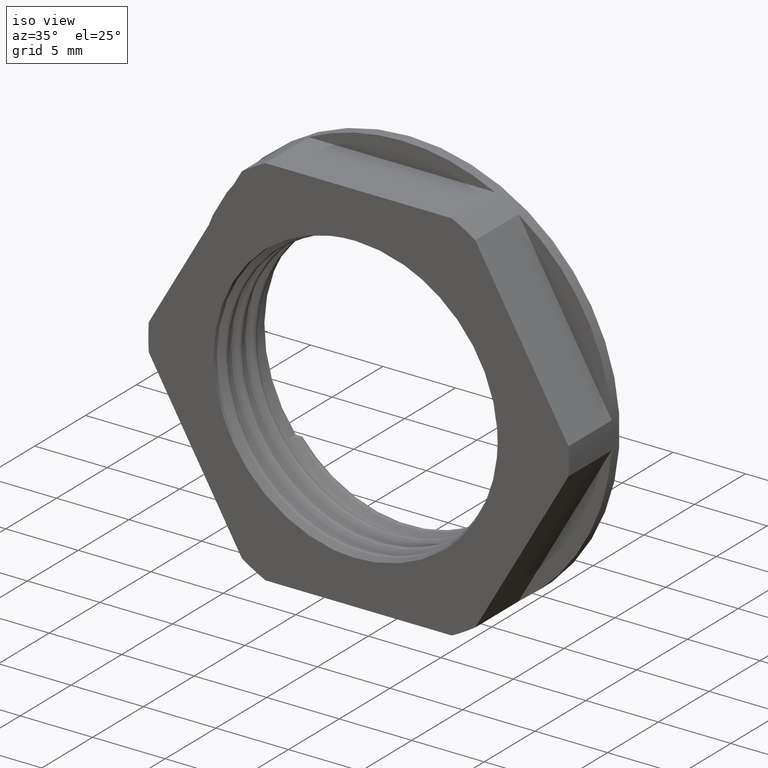
[diagram: clean part render]
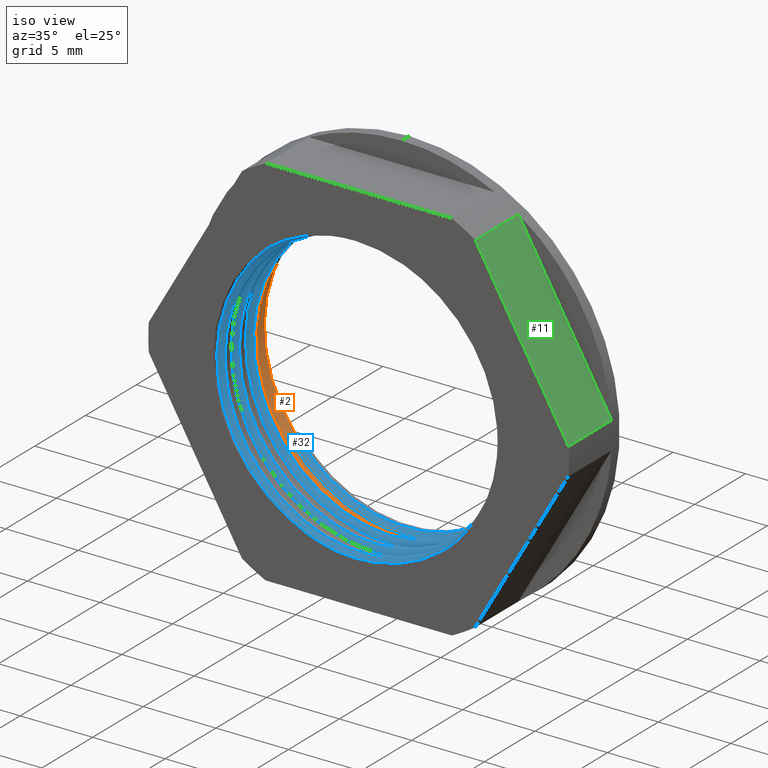
[diagram: same view with three faces highlighted in distinct colors, each labeled with its STEP entity id]
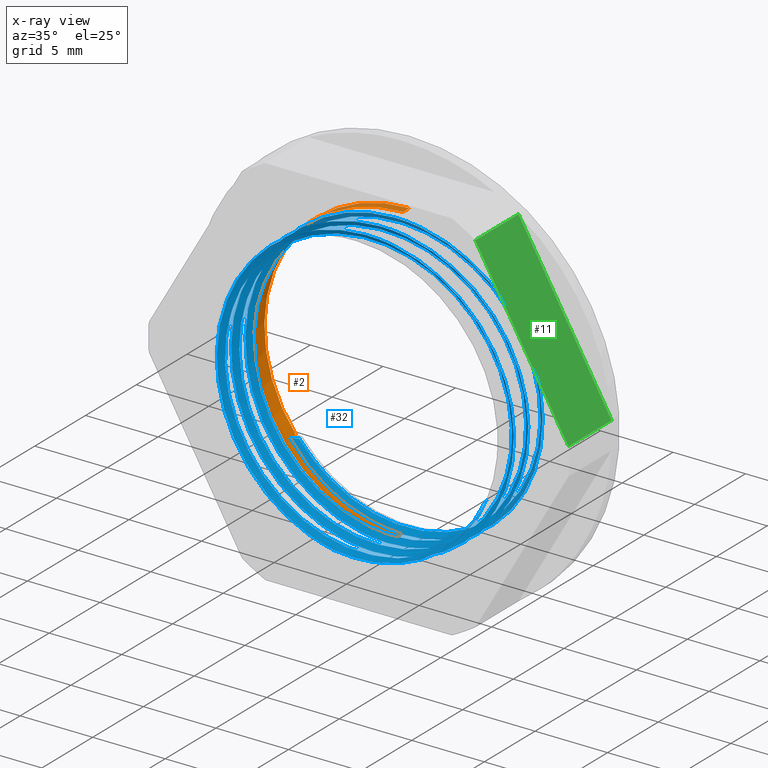
[diagram: x-ray of the same camera — body ghosted, the three highlighted faces saturated]
A machine part, iso view with three faces highlighted in distinct colors.
The next image is the same camera in x-ray (body ghosted, the three faces saturated) — at least one of them is partly hidden behind the body in this view.
Their STEP definitions:

[orange] entity #2 — the highlighted cylindrical surface (partial cylindrical patch) has radius 10 mm, axis along (0, 1, 0).
#2 = ADVANCED_FACE ( 'NONE', ( #1028 ), #790, .F. ) ;
#13 = EDGE_CURVE ( 'NONE', #770, #759, #2258, .T. ) ;
#35 = EDGE_CURVE ( 'NONE', #770, #752, #1652, .T. ) ;
#42 = EDGE_CURVE ( 'NONE', #773, #761, #1748, .T. ) ;
#68 = EDGE_CURVE ( 'NONE', #773, #752, #1316, .T. ) ;
#76 = EDGE_CURVE ( 'NONE', #761, #758, #2265, .T. ) ;
#78 = EDGE_CURVE ( 'NONE', #759, #758, #1877, .T. ) ;
#135 = CARTESIAN_POINT ( 'NONE',  ( -4.142135623742325000, -12.17949612511936800, -9.999999999988626000 ) ) ;
#151 = CARTESIAN_POINT ( 'NONE',  ( -4.142135623743410400, -11.65074612512007600, 9.999999999987542400 ) ) ;
#156 = CARTESIAN_POINT ( 'NONE',  ( -9.999999999999998200, -11.82699612511969500, 4.142135623730955500 ) ) ;
#157 = CARTESIAN_POINT ( 'NONE',  ( -3.006493559216707500E-011, -11.56262112512034800, 9.999999999999998200 ) ) ;
#159 = CARTESIAN_POINT ( 'NONE',  ( -7.071067811865473700, -11.73887112511971000, 7.071067811865473700 ) ) ;
#163 = CARTESIAN_POINT ( 'NONE',  ( -9.999999999999998200, -11.91512112511970900, 0.0000000000000000000 ) ) ;
#165 = CARTESIAN_POINT ( 'NONE',  ( -9.999999999999998200, -12.00324612511970200, -4.142135623730949200 ) ) ;
#166 = CARTESIAN_POINT ( 'NONE',  ( -7.071067811865473700, -12.09137112511970900, -7.071067811865473700 ) ) ;
#171 = CARTESIAN_POINT ( 'NONE',  ( -2.746381855263045700E-011, -12.26762112511912600, -9.999999999999998200 ) ) ;
#752 = VERTEX_POINT ( 'NONE', #2137 ) ;
#758 = VERTEX_POINT ( 'NONE', #2179 ) ;
#759 = VERTEX_POINT ( 'NONE', #2212 ) ;
#761 = VERTEX_POINT ( 'NONE', #2183 ) ;
#770 = VERTEX_POINT ( 'NONE', #2215 ) ;
#773 = VERTEX_POINT ( 'NONE', #2190 ) ;
#790 = CYLINDRICAL_SURFACE ( 'NONE', #1293, 10.00000000000000000 ) ;
#796 = CARTESIAN_POINT ( 'NONE',  ( 0.0000000000000000000, -20.94999999999999900, 0.0000000000000000000 ) ) ;
#797 = ORIENTED_EDGE ( 'NONE', *, *, #42, .F. ) ;
#798 = ORIENTED_EDGE ( 'NONE', *, *, #13, .T. ) ;
#850 = ORIENTED_EDGE ( 'NONE', *, *, #76, .F. ) ;
#854 = ORIENTED_EDGE ( 'NONE', *, *, #68, .T. ) ;
#856 = ORIENTED_EDGE ( 'NONE', *, *, #35, .F. ) ;
#857 = ORIENTED_EDGE ( 'NONE', *, *, #78, .T. ) ;
#946 = DIRECTION ( 'NONE',  ( 0.0000000000000000000, 1.000000000000000000, 0.0000000000000000000 ) ) ;
#973 = EDGE_LOOP ( 'NONE', ( #798, #857, #850, #797, #854, #856 ) ) ;
#1020 = DIRECTION ( 'NONE',  ( 0.0000000000000000000, 0.0000000000000000000, 1.000000000000000000 ) ) ;
#1028 = FACE_OUTER_BOUND ( 'NONE', #973, .T. ) ;
#1293 = AXIS2_PLACEMENT_3D ( 'NONE', #796, #946, #1020 ) ;
#1309 = VECTOR ( 'NONE', #1726, 1000.000000000000000 ) ;
#1316 = CIRCLE ( 'NONE', #1318, 10.00000000000000000 ) ;
#1318 = AXIS2_PLACEMENT_3D ( 'NONE', #1808, #1830, #1826 ) ;
#1343 = VECTOR ( 'NONE', #1653, 1000.000000000000000 ) ;
#1380 = VECTOR ( 'NONE', #1848, 1000.000000000000000 ) ;
#1652 = LINE ( 'NONE', #1671, #1343 ) ;
#1653 = DIRECTION ( 'NONE',  ( 0.0000000000000000000, 1.000000000000000000, 0.0000000000000000000 ) ) ;
#1671 = CARTESIAN_POINT ( 'NONE',  ( 0.0000000000000000000, -20.94999999999999900, 10.00000000000000000 ) ) ;
#1726 = DIRECTION ( 'NONE',  ( -0.0000000000000000000, -1.000000000000000000, -0.0000000000000000000 ) ) ;
#1741 = CARTESIAN_POINT ( 'NONE',  ( -7.846018098373211700, -20.94999999999999900, -6.200000000000001100 ) ) ;
#1748 = LINE ( 'NONE', #1741, #1309 ) ;
#1808 = CARTESIAN_POINT ( 'NONE',  ( 0.0000000000000000000, -10.95000000000000100, 0.0000000000000000000 ) ) ;
#1826 = DIRECTION ( 'NONE',  ( 0.0000000000000000000, 0.0000000000000000000, -1.000000000000000000 ) ) ;
#1830 = DIRECTION ( 'NONE',  ( -0.0000000000000000000, 1.000000000000000000, -0.0000000000000000000 ) ) ;
#1844 = CARTESIAN_POINT ( 'NONE',  ( -7.846018098380169700, -11.55576743391516100, -6.199999999991199200 ) ) ;
#1847 = CARTESIAN_POINT ( 'NONE',  ( -4.142135623718470300, -11.66925387488164200, -10.00000000001248100 ) ) ;
#1848 = DIRECTION ( 'NONE',  ( 0.0000000000000000000, 1.000000000000000000, 0.0000000000000000000 ) ) ;
#1850 = CARTESIAN_POINT ( 'NONE',  ( 3.012734064888285900E-011, -11.75737887488189800, -10.00000000000000200 ) ) ;
#1873 = CARTESIAN_POINT ( 'NONE',  ( -7.483975507346695400, -11.56870540846858100, -6.658160116384254800 ) ) ;
#1877 = LINE ( 'NONE', #1887, #1380 ) ;
#1887 = CARTESIAN_POINT ( 'NONE',  ( 1.224646799147353300E-015, -20.94999999999999900, -10.00000000000000000 ) ) ;
#1889 = CARTESIAN_POINT ( 'NONE',  ( -7.071067811865475500, -11.58112887488125300, -7.071067811865475500 ) ) ;
#2137 = CARTESIAN_POINT ( 'NONE',  ( 0.0000000000000000000, -10.95000000000000100, 10.00000000000000000 ) ) ;
#2179 = CARTESIAN_POINT ( 'NONE',  ( 3.012734064888285900E-011, -11.75737887488189800, -10.00000000000000200 ) ) ;
#2183 = CARTESIAN_POINT ( 'NONE',  ( -7.846018098380169700, -11.55576743391516100, -6.199999999991199200 ) ) ;
#2190 = CARTESIAN_POINT ( 'NONE',  ( -7.846018098373211700, -10.95000000000000100, -6.200000000000001100 ) ) ;
#2212 = CARTESIAN_POINT ( 'NONE',  ( -2.746381855263045700E-011, -12.26762112511912600, -10.00000000000000000 ) ) ;
#2215 = CARTESIAN_POINT ( 'NONE',  ( -3.006493559216707500E-011, -11.56262112512034800, 9.999999999999998200 ) ) ;
#2258 =( BOUNDED_CURVE ( )  B_SPLINE_CURVE ( 2, ( #157, #151, #159, #156, #163, #165, #166, #135, #171 ),
 .UNSPECIFIED., .F., .F. ) 
 B_SPLINE_CURVE_WITH_KNOTS ( ( 3, 2, 2, 2, 3 ),
 ( 0.05546358415195965000, 0.06336735400736434600, 0.07127112386276904200, 0.07917489371817375300, 0.08707866357357844900 ),
 .UNSPECIFIED. ) 
 CURVE ( )  GEOMETRIC_REPRESENTATION_ITEM ( )  RATIONAL_B_SPLINE_CURVE ( ( 0.9999999999997009100, 0.9238795325115860500, 1.000000000000000000, 0.9238795325112869600, 1.000000000000000000, 0.9238795325112869600, 1.000000000000000000, 0.9238795325115600800, 0.9999999999997268900 ) ) 
 REPRESENTATION_ITEM ( '' )  );
#2265 =( BOUNDED_CURVE ( )  B_SPLINE_CURVE ( 2, ( #1844, #1873, #1889, #1847, #1850 ),
 .UNSPECIFIED., .F., .F. ) 
 B_SPLINE_CURVE_WITH_KNOTS ( ( 3, 2, 3 ),
 ( 0.01488864047675231600, 0.01607827895935617600, 0.02396510154617909800 ),
 .UNSPECIFIED. ) 
 CURVE ( )  GEOMETRIC_REPRESENTATION_ITEM ( )  RATIONAL_B_SPLINE_CURVE ( ( 0.9805000031347788100, 0.9885180836209417300, 1.000000000000000000, 0.9238795325109873100, 1.000000000000299800 ) ) 
 REPRESENTATION_ITEM ( '' )  );

[blue] entity #32 — the highlighted face is a freeform B-spline surface patch.
#32 = ADVANCED_FACE ( 'NONE', ( #1444 ), #2266, .F. ) ;
#40 = EDGE_CURVE ( 'NONE', #760, #781, #2264, .T. ) ;
#47 = EDGE_CURVE ( 'NONE', #758, #793, #2272, .T. ) ;
#62 = EDGE_CURVE ( 'NONE', #743, #760, #2259, .T. ) ;
#64 = EDGE_CURVE ( 'NONE', #793, #743, #2260, .T. ) ;
#69 = EDGE_CURVE ( 'NONE', #781, #786, #2267, .T. ) ;
#76 = EDGE_CURVE ( 'NONE', #761, #758, #2265, .T. ) ;
#88 = EDGE_CURVE ( 'NONE', #762, #778, #2275, .T. ) ;
#89 = EDGE_CURVE ( 'NONE', #778, #761, #123, .T. ) ;
#94 = EDGE_CURVE ( 'NONE', #786, #785, #2280, .T. ) ;
#103 = EDGE_CURVE ( 'NONE', #762, #785, #128, .T. ) ;
#123 = B_SPLINE_CURVE_WITH_KNOTS ( 'NONE', 3,
 ( #1896, #1899, #1950, #1961, #1952, #1966, #1985 ),
 .UNSPECIFIED., .F., .F.,
 ( 4, 3, 4 ),
 ( 2.453269466693398700E-018, 0.0004587740067472688800, 0.0005404289811188535000 ),
 .UNSPECIFIED. ) ;
#128 = B_SPLINE_CURVE_WITH_KNOTS ( 'NONE', 3,
 ( #2049, #2102, #2048, #2053, #2083, #2081, #2085, #2103, #2086, #2047, #2054, #2055, #2058, #2092, #2056, #2057, #2059, #2060 ),
 .UNSPECIFIED., .F., .F.,
 ( 4, 2, 2, 2, 2, 2, 2, 2, 4 ),
 ( 5.710086792581569100E-016, 0.001637634746555153000, 0.003275269493109733500, 0.004912904239664313600, 0.006550538986218891100, 0.008188173732773470400, 0.009825808479328049600, 0.01146344322588262900, 0.01310107797243720600 ),
 .UNSPECIFIED. ) ;
#743 = VERTEX_POINT ( 'NONE', #2133 ) ;
#758 = VERTEX_POINT ( 'NONE', #2179 ) ;
#760 = VERTEX_POINT ( 'NONE', #2216 ) ;
#761 = VERTEX_POINT ( 'NONE', #2183 ) ;
#762 = VERTEX_POINT ( 'NONE', #2172 ) ;
#778 = VERTEX_POINT ( 'NONE', #2219 ) ;
#781 = VERTEX_POINT ( 'NONE', #2174 ) ;
#785 = VERTEX_POINT ( 'NONE', #2178 ) ;
#786 = VERTEX_POINT ( 'NONE', #2189 ) ;
#793 = VERTEX_POINT ( 'NONE', #2191 ) ;
#799 = ORIENTED_EDGE ( 'NONE', *, *, #47, .T. ) ;
#807 = ORIENTED_EDGE ( 'NONE', *, *, #40, .T. ) ;
#825 = ORIENTED_EDGE ( 'NONE', *, *, #89, .T. ) ;
#831 = ORIENTED_EDGE ( 'NONE', *, *, #76, .T. ) ;
#832 = ORIENTED_EDGE ( 'NONE', *, *, #64, .T. ) ;
#834 = ORIENTED_EDGE ( 'NONE', *, *, #69, .T. ) ;
#838 = ORIENTED_EDGE ( 'NONE', *, *, #62, .T. ) ;
#864 = ORIENTED_EDGE ( 'NONE', *, *, #88, .T. ) ;
#880 = ORIENTED_EDGE ( 'NONE', *, *, #103, .F. ) ;
#961 = ORIENTED_EDGE ( 'NONE', *, *, #94, .T. ) ;
#966 = EDGE_LOOP ( 'NONE', ( #864, #825, #831, #799, #832, #838, #807, #834, #961, #880 ) ) ;
#1401 = CARTESIAN_POINT ( 'NONE',  ( -7.247844507162112000, -11.79090378267520100, -7.247844507162112000 ) ) ;
#1402 = CARTESIAN_POINT ( 'NONE',  ( 4.245689014324223200, -12.05527878267520400, -10.24999999999999800 ) ) ;
#1404 = CARTESIAN_POINT ( 'NONE',  ( 7.247844507162112000, -12.14340378267520000, -7.247844507162112000 ) ) ;
#1405 = CARTESIAN_POINT ( 'NONE',  ( -4.245689014324223200, -13.28902878267519900, -10.24999999999999800 ) ) ;
#1406 = CARTESIAN_POINT ( 'NONE',  ( 10.24999999999999800, -13.64152878267519300, -4.245689014324228500 ) ) ;
#1410 = CARTESIAN_POINT ( 'NONE',  ( 4.245689014324223200, -13.46527878267518800, -10.24999999999999800 ) ) ;
#1411 = CARTESIAN_POINT ( 'NONE',  ( -10.24999999999999800, -14.34652878267521600, 4.245689014324228500 ) ) ;
#1412 = CARTESIAN_POINT ( 'NONE',  ( -4.245689014324223200, -14.69902878267520700, -10.24999999999999800 ) ) ;
#1413 = CARTESIAN_POINT ( 'NONE',  ( -6.276314845630190100E-016, -14.78715378267519900, -10.25000000000000000 ) ) ;
#1414 = CARTESIAN_POINT ( 'NONE',  ( 7.247844507162112000, -12.49590378267520000, 7.247844507162112000 ) ) ;
#1415 = CARTESIAN_POINT ( 'NONE',  ( 7.247844507162112000, -14.96340378267520100, -7.247844507162112000 ) ) ;
#1416 = CARTESIAN_POINT ( 'NONE',  ( 10.24999999999999800, -15.05152878267519500, -4.245689014324228500 ) ) ;
#1419 = CARTESIAN_POINT ( 'NONE',  ( -10.24999999999999800, -11.70277878267518900, -4.245689014324223200 ) ) ;
#1420 = CARTESIAN_POINT ( 'NONE',  ( 10.24999999999999800, -13.81777878267519600, 4.245689014324223200 ) ) ;
#1421 = CARTESIAN_POINT ( 'NONE',  ( 4.245689014324223200, -14.87527878267519200, -10.24999999999999800 ) ) ;
#1422 = CARTESIAN_POINT ( 'NONE',  ( 10.24999999999999800, -12.40777878267519400, 4.245689014324223200 ) ) ;
#1423 = CARTESIAN_POINT ( 'NONE',  ( -4.245689014324228500, -12.76027878267520200, 10.24999999999999800 ) ) ;
#1425 = CARTESIAN_POINT ( 'NONE',  ( -7.247844507162112000, -14.25840378267520100, 7.247844507162112000 ) ) ;
#1426 = CARTESIAN_POINT ( 'NONE',  ( -10.25000000000000000, -11.61465378267520000, 0.0000000000000000000 ) ) ;
#1429 = CARTESIAN_POINT ( 'NONE',  ( 10.25000000000000000, -15.13965378267520000, -1.255262969126036100E-015 ) ) ;
#1430 = CARTESIAN_POINT ( 'NONE',  ( -10.24999999999999800, -12.93652878267519000, 4.245689014324228500 ) ) ;
#1431 = CARTESIAN_POINT ( 'NONE',  ( 4.245689014324228500, -12.58402878267520100, 10.24999999999999800 ) ) ;
#1432 = CARTESIAN_POINT ( 'NONE',  ( 1.882894453689054900E-015, -12.67215378267520100, 10.25000000000000000 ) ) ;
#1435 = CARTESIAN_POINT ( 'NONE',  ( -7.247844507162112000, -12.84840378267520000, 7.247844507162112000 ) ) ;
#1436 = CARTESIAN_POINT ( 'NONE',  ( 10.25000000000000000, -13.72965378267520000, -1.255262969126036100E-015 ) ) ;
#1437 = CARTESIAN_POINT ( 'NONE',  ( -6.276314845630190100E-016, -11.96715378267520300, -10.25000000000000000 ) ) ;
#1438 = CARTESIAN_POINT ( 'NONE',  ( 10.24999999999999800, -12.23152878267518200, -4.245689014324228500 ) ) ;
#1439 = CARTESIAN_POINT ( 'NONE',  ( -10.25000000000000000, -13.02465378267520000, 0.0000000000000000000 ) ) ;
#1440 = CARTESIAN_POINT ( 'NONE',  ( -10.24999999999999800, -13.11277878267521600, -4.245689014324223200 ) ) ;
#1441 = CARTESIAN_POINT ( 'NONE',  ( -7.247844507162112000, -13.20090378267520300, -7.247844507162112000 ) ) ;
#1442 = CARTESIAN_POINT ( 'NONE',  ( 1.882894453689054900E-015, -14.08215378267520100, 10.25000000000000000 ) ) ;
#1444 = FACE_OUTER_BOUND ( 'NONE', #966, .T. ) ;
#1445 = CARTESIAN_POINT ( 'NONE',  ( -10.25000000000000000, -14.43465378267520400, 0.0000000000000000000 ) ) ;
#1446 = CARTESIAN_POINT ( 'NONE',  ( 10.25000000000000000, -12.31965378267520000, -1.255262969126036100E-015 ) ) ;
#1447 = CARTESIAN_POINT ( 'NONE',  ( -4.245689014324223200, -11.87902878267521900, -10.24999999999999800 ) ) ;
#1448 = CARTESIAN_POINT ( 'NONE',  ( -6.276314845630190100E-016, -13.37715378267519900, -10.25000000000000000 ) ) ;
#1451 = CARTESIAN_POINT ( 'NONE',  ( 7.247844507162112000, -13.55340378267520100, -7.247844507162112000 ) ) ;
#1452 = CARTESIAN_POINT ( 'NONE',  ( 7.247844507162112000, -13.90590378267520000, 7.247844507162112000 ) ) ;
#1453 = CARTESIAN_POINT ( 'NONE',  ( -4.245689014324228500, -14.17027878267518800, 10.24999999999999800 ) ) ;
#1454 = CARTESIAN_POINT ( 'NONE',  ( 4.245689014324228500, -13.99402878267520500, 10.24999999999999800 ) ) ;
#1455 = CARTESIAN_POINT ( 'NONE',  ( -10.24999999999999800, -14.52277878267520400, -4.245689014324223200 ) ) ;
#1456 = CARTESIAN_POINT ( 'NONE',  ( -7.247844507162112000, -14.61090378267520000, -7.247844507162112000 ) ) ;
#1458 = CARTESIAN_POINT ( 'NONE',  ( 1.882894453689054900E-015, -18.31215378267520000, 10.25000000000000000 ) ) ;
#1459 = CARTESIAN_POINT ( 'NONE',  ( -10.25000000000000000, -17.25465378267520600, 0.0000000000000000000 ) ) ;
#1460 = CARTESIAN_POINT ( 'NONE',  ( -4.245689014324223200, -17.51902878267520300, -10.24999999999999800 ) ) ;
#1461 = CARTESIAN_POINT ( 'NONE',  ( 7.247844507162112000, -16.72590378267520000, 7.247844507162112000 ) ) ;
#1462 = CARTESIAN_POINT ( 'NONE',  ( 1.882894453689054900E-015, -19.72215378267520300, 10.25000000000000000 ) ) ;
#1463 = CARTESIAN_POINT ( 'NONE',  ( -4.245689014324228500, -19.81027878267521900, 10.24999999999999800 ) ) ;
#1464 = CARTESIAN_POINT ( 'NONE',  ( -10.24999999999999800, -19.98652878267521500, 4.245689014324228500 ) ) ;
#1465 = CARTESIAN_POINT ( 'NONE',  ( -6.276314845630190100E-016, -17.60715378267519800, -10.25000000000000000 ) ) ;
#1466 = CARTESIAN_POINT ( 'NONE',  ( -7.247844507162112000, -19.89840378267519900, 7.247844507162112000 ) ) ;
#1467 = CARTESIAN_POINT ( 'NONE',  ( -10.25000000000000000, -20.07465378267519900, 0.0000000000000000000 ) ) ;
#1468 = CARTESIAN_POINT ( 'NONE',  ( 10.24999999999999800, -17.87152878267518100, -4.245689014324228500 ) ) ;
#1469 = CARTESIAN_POINT ( 'NONE',  ( 10.25000000000000000, -17.95965378267520100, -1.255262969126036100E-015 ) ) ;
#1470 = CARTESIAN_POINT ( 'NONE',  ( -4.245689014324228500, -18.40027878267518000, 10.24999999999999800 ) ) ;
#1471 = CARTESIAN_POINT ( 'NONE',  ( 10.24999999999999800, -18.04777878267521600, 4.245689014324223200 ) ) ;
#1472 = CARTESIAN_POINT ( 'NONE',  ( 4.245689014324228500, -18.22402878267520900, 10.24999999999999800 ) ) ;
#1473 = CARTESIAN_POINT ( 'NONE',  ( -10.24999999999999800, -18.57652878267523300, 4.245689014324228500 ) ) ;
#1474 = CARTESIAN_POINT ( 'NONE',  ( -4.245689014324223200, -18.92902878267519300, -10.24999999999999800 ) ) ;
#1475 = CARTESIAN_POINT ( 'NONE',  ( -10.24999999999999800, -20.16277878267518600, -4.245689014324223200 ) ) ;
#1476 = CARTESIAN_POINT ( 'NONE',  ( -7.247844507162112000, -20.25090378267519900, -7.247844507162112000 ) ) ;
#1477 = CARTESIAN_POINT ( 'NONE',  ( 4.245689014324228500, -19.63402878267519100, 10.24999999999999800 ) ) ;
#1478 = CARTESIAN_POINT ( 'NONE',  ( 7.247844507162112000, -16.37340378267520100, -7.247844507162112000 ) ) ;
#1479 = CARTESIAN_POINT ( 'NONE',  ( 4.245689014324228500, -15.40402878267519200, 10.24999999999999800 ) ) ;
#1480 = CARTESIAN_POINT ( 'NONE',  ( -4.245689014324223200, -20.33902878267517200, -10.24999999999999800 ) ) ;
#1481 = CARTESIAN_POINT ( 'NONE',  ( -6.276314845630190100E-016, -16.19715378267520100, -10.25000000000000000 ) ) ;
#1482 = CARTESIAN_POINT ( 'NONE',  ( 4.245689014324223200, -19.10527878267517500, -10.24999999999999800 ) ) ;
#1483 = CARTESIAN_POINT ( 'NONE',  ( 7.247844507162112000, -18.13590378267520000, 7.247844507162112000 ) ) ;
#1484 = CARTESIAN_POINT ( 'NONE',  ( -4.245689014324223200, -16.10902878267518900, -10.24999999999999800 ) ) ;
#1485 = CARTESIAN_POINT ( 'NONE',  ( 10.24999999999999800, -19.28152878267521300, -4.245689014324228500 ) ) ;
#1486 = CARTESIAN_POINT ( 'NONE',  ( -4.245689014324228500, -16.99027878267519800, 10.24999999999999800 ) ) ;
#1487 = CARTESIAN_POINT ( 'NONE',  ( 10.24999999999999800, -15.22777878267520400, 4.245689014324223200 ) ) ;
#1488 = CARTESIAN_POINT ( 'NONE',  ( -4.245689014324228500, -15.58027878267521500, 10.24999999999999800 ) ) ;
#1489 = CARTESIAN_POINT ( 'NONE',  ( -10.24999999999999800, -15.93277878267518200, -4.245689014324223200 ) ) ;
#1490 = CARTESIAN_POINT ( 'NONE',  ( -7.247844507162112000, -16.02090378267520200, -7.247844507162112000 ) ) ;
#1491 = CARTESIAN_POINT ( 'NONE',  ( 10.24999999999999800, -16.63777878267517700, 4.245689014324223200 ) ) ;
#1492 = CARTESIAN_POINT ( 'NONE',  ( -10.24999999999999800, -17.34277878267522900, -4.245689014324223200 ) ) ;
#1493 = CARTESIAN_POINT ( 'NONE',  ( 1.882894453689054900E-015, -15.49215378267520300, 10.25000000000000000 ) ) ;
#1494 = CARTESIAN_POINT ( 'NONE',  ( 7.247844507162112000, -17.78340378267519700, -7.247844507162112000 ) ) ;
#1495 = CARTESIAN_POINT ( 'NONE',  ( -10.24999999999999800, -18.75277878267520700, -4.245689014324223200 ) ) ;
#1496 = CARTESIAN_POINT ( 'NONE',  ( -7.247844507162112000, -15.66840378267519900, 7.247844507162112000 ) ) ;
#1497 = CARTESIAN_POINT ( 'NONE',  ( -6.276314845630190100E-016, -19.01715378267520200, -10.25000000000000000 ) ) ;
#1498 = CARTESIAN_POINT ( 'NONE',  ( 10.25000000000000000, -19.36965378267520100, -1.255262969126036100E-015 ) ) ;
#1499 = CARTESIAN_POINT ( 'NONE',  ( -10.24999999999999800, -15.75652878267520100, 4.245689014324228500 ) ) ;
#1500 = CARTESIAN_POINT ( 'NONE',  ( 10.24999999999999800, -16.46152878267519200, -4.245689014324228500 ) ) ;
#1501 = CARTESIAN_POINT ( 'NONE',  ( 4.245689014324228500, -16.81402878267521600, 10.24999999999999800 ) ) ;
#1502 = CARTESIAN_POINT ( 'NONE',  ( -10.25000000000000000, -18.66465378267519900, 0.0000000000000000000 ) ) ;
#1503 = CARTESIAN_POINT ( 'NONE',  ( 4.245689014324223200, -16.28527878267520600, -10.24999999999999800 ) ) ;
#1504 = CARTESIAN_POINT ( 'NONE',  ( 7.247844507162112000, -19.19340378267520100, -7.247844507162112000 ) ) ;
#1505 = CARTESIAN_POINT ( 'NONE',  ( 1.882894453689054900E-015, -16.90215378267520300, 10.25000000000000000 ) ) ;
#1506 = CARTESIAN_POINT ( 'NONE',  ( -10.25000000000000000, -15.84465378267519900, 0.0000000000000000000 ) ) ;
#1507 = CARTESIAN_POINT ( 'NONE',  ( -7.247844507162112000, -17.07840378267520300, 7.247844507162112000 ) ) ;
#1508 = CARTESIAN_POINT ( 'NONE',  ( 10.25000000000000000, -16.54965378267520000, -1.255262969126036100E-015 ) ) ;
#1509 = CARTESIAN_POINT ( 'NONE',  ( -7.247844507162112000, -17.43090378267520200, -7.247844507162112000 ) ) ;
#1510 = CARTESIAN_POINT ( 'NONE',  ( 7.247844507162112000, -15.31590378267520200, 7.247844507162112000 ) ) ;
#1511 = CARTESIAN_POINT ( 'NONE',  ( 4.245689014324223200, -17.69527878267519200, -10.24999999999999800 ) ) ;
#1512 = CARTESIAN_POINT ( 'NONE',  ( -7.247844507162112000, -18.84090378267520200, -7.247844507162112000 ) ) ;
#1513 = CARTESIAN_POINT ( 'NONE',  ( -10.24999999999999800, -17.16652878267519000, 4.245689014324228500 ) ) ;
#1514 = CARTESIAN_POINT ( 'NONE',  ( 10.24999999999999800, -19.45777878267520200, 4.245689014324223200 ) ) ;
#1515 = CARTESIAN_POINT ( 'NONE',  ( 7.247844507162112000, -19.54590378267520400, 7.247844507162112000 ) ) ;
#1516 = CARTESIAN_POINT ( 'NONE',  ( -7.247844507162112000, -18.48840378267519900, 7.247844507162112000 ) ) ;
#1517 = CARTESIAN_POINT ( 'NONE',  ( -10.24999999999999800, -21.57277878267517600, -4.245689014324223200 ) ) ;
#1518 = CARTESIAN_POINT ( 'NONE',  ( 1.772022735587855300E-015, -12.16570888862456100, 9.646442478063082900 ) ) ;
#1519 = CARTESIAN_POINT ( 'NONE',  ( -3.995687303065658100, -12.25383388862455900, 9.646442478063081100 ) ) ;
#1520 = CARTESIAN_POINT ( 'NONE',  ( 3.995687303065664300, -13.48758388862455400, 9.646442478063081100 ) ) ;
#1521 = CARTESIAN_POINT ( 'NONE',  ( -10.24999999999999800, -22.80652878267518300, 4.245689014324228500 ) ) ;
#1522 = CARTESIAN_POINT ( 'NONE',  ( -3.995687303065658100, -13.66383388862456600, 9.646442478063081100 ) ) ;
#1523 = CARTESIAN_POINT ( 'NONE',  ( 3.995687303065658100, -12.95883388862457900, -9.646442478063081100 ) ) ;
#1524 = CARTESIAN_POINT ( 'NONE',  ( 7.247844507162112000, -22.01340378267520500, -7.247844507162112000 ) ) ;
#1525 = CARTESIAN_POINT ( 'NONE',  ( 10.24999999999999800, -22.10152878267517800, -4.245689014324228500 ) ) ;
#1526 = CARTESIAN_POINT ( 'NONE',  ( 7.247844507162112000, -20.60340378267520100, -7.247844507162112000 ) ) ;
#1527 = CARTESIAN_POINT ( 'NONE',  ( 10.24999999999999800, -20.69152878267519600, -4.245689014324228500 ) ) ;
#1528 = CARTESIAN_POINT ( 'NONE',  ( 10.24999999999999800, -20.86777878267519200, 4.245689014324223200 ) ) ;
#1529 = CARTESIAN_POINT ( 'NONE',  ( -7.247844507162112000, -21.66090378267520200, -7.247844507162112000 ) ) ;
#1530 = CARTESIAN_POINT ( 'NONE',  ( 4.245689014324223200, -20.51527878267521700, -10.24999999999999800 ) ) ;
#1531 = CARTESIAN_POINT ( 'NONE',  ( 10.25000000000000000, -20.77965378267520100, -1.255262969126036100E-015 ) ) ;
#1532 = CARTESIAN_POINT ( 'NONE',  ( 4.245689014324223200, -21.92527878267520000, -10.24999999999999800 ) ) ;
#1533 = CARTESIAN_POINT ( 'NONE',  ( 10.24999999999999800, -22.27777878267523100, 4.245689014324223200 ) ) ;
#1534 = CARTESIAN_POINT ( 'NONE',  ( -9.646442478063082900, -11.10820888862455800, 0.0000000000000000000 ) ) ;
#1535 = CARTESIAN_POINT ( 'NONE',  ( 3.995687303065658100, -11.54883388862457500, -9.646442478063081100 ) ) ;
#1536 = CARTESIAN_POINT ( 'NONE',  ( 6.821064890564369600, -11.63695888862455900, -6.821064890564369600 ) ) ;
#1537 = CARTESIAN_POINT ( 'NONE',  ( -6.821064890564369600, -12.34195888862455900, 6.821064890564369600 ) ) ;
#1538 = CARTESIAN_POINT ( 'NONE',  ( 4.245689014324228500, -22.45402878267520600, 10.24999999999999800 ) ) ;
#1539 = CARTESIAN_POINT ( 'NONE',  ( 7.247844507162112000, -22.36590378267519700, 7.247844507162112000 ) ) ;
#1540 = CARTESIAN_POINT ( 'NONE',  ( -6.821064890564369600, -13.75195888862455900, 6.821064890564369600 ) ) ;
#1541 = CARTESIAN_POINT ( 'NONE',  ( -9.646442478063081100, -14.01633388862457300, -3.995687303065658100 ) ) ;
#1542 = CARTESIAN_POINT ( 'NONE',  ( -3.995687303065658100, -12.78258388862457600, -9.646442478063081100 ) ) ;
#1543 = CARTESIAN_POINT ( 'NONE',  ( -6.821064890564369600, -12.69445888862456000, -6.821064890564369600 ) ) ;
#1544 = CARTESIAN_POINT ( 'NONE',  ( 6.821064890564369600, -13.39945888862455800, 6.821064890564369600 ) ) ;
#1545 = CARTESIAN_POINT ( 'NONE',  ( -6.821064890564369600, -14.10445888862456000, -6.821064890564369600 ) ) ;
#1546 = CARTESIAN_POINT ( 'NONE',  ( -5.906742451959509900E-016, -12.87070888862455900, -9.646442478063082900 ) ) ;
#1547 = CARTESIAN_POINT ( 'NONE',  ( 9.646442478063081100, -13.31133388862456900, 3.995687303065652800 ) ) ;
#1548 = CARTESIAN_POINT ( 'NONE',  ( 9.646442478063081100, -11.90133388862456700, 3.995687303065652800 ) ) ;
#1549 = CARTESIAN_POINT ( 'NONE',  ( -7.247844507162112000, -21.30840378267520000, 7.247844507162112000 ) ) ;
#1550 = CARTESIAN_POINT ( 'NONE',  ( -4.245689014324228500, -21.22027878267520500, 10.24999999999999800 ) ) ;
#1551 = CARTESIAN_POINT ( 'NONE',  ( 3.995687303065664300, -12.07758388862457000, 9.646442478063081100 ) ) ;
#1552 = CARTESIAN_POINT ( 'NONE',  ( 7.247844507162112000, -20.95590378267520000, 7.247844507162112000 ) ) ;
#1553 = CARTESIAN_POINT ( 'NONE',  ( -6.276314845630190100E-016, -20.42715378267519800, -10.25000000000000000 ) ) ;
#1554 = CARTESIAN_POINT ( 'NONE',  ( -4.245689014324223200, -21.74902878267521100, -10.24999999999999800 ) ) ;
#1555 = CARTESIAN_POINT ( 'NONE',  ( -6.276314845630190100E-016, -21.83715378267520500, -10.25000000000000000 ) ) ;
#1556 = CARTESIAN_POINT ( 'NONE',  ( -10.25000000000000000, -22.89465378267519900, 0.0000000000000000000 ) ) ;
#1557 = CARTESIAN_POINT ( 'NONE',  ( -9.646442478063081100, -12.43008388862456200, 3.995687303065664300 ) ) ;
#1558 = CARTESIAN_POINT ( 'NONE',  ( -9.646442478063081100, -12.60633388862456900, -3.995687303065658100 ) ) ;
#1559 = CARTESIAN_POINT ( 'NONE',  ( 9.646442478063081100, -13.13508388862456800, -3.995687303065658100 ) ) ;
#1560 = CARTESIAN_POINT ( 'NONE',  ( 9.646442478063082900, -13.22320888862456200, -1.181348490391902000E-015 ) ) ;
#1561 = CARTESIAN_POINT ( 'NONE',  ( 9.646442478063081100, -11.72508388862458300, -3.995687303065658100 ) ) ;
#1562 = CARTESIAN_POINT ( 'NONE',  ( 1.772022735587855300E-015, -13.57570888862455900, 9.646442478063082900 ) ) ;
#1563 = CARTESIAN_POINT ( 'NONE',  ( -9.646442478063081100, -13.84008388862457100, 3.995687303065664300 ) ) ;
#1564 = CARTESIAN_POINT ( 'NONE',  ( -4.245689014324228500, -22.63027878267518700, 10.24999999999999800 ) ) ;
#1565 = CARTESIAN_POINT ( 'NONE',  ( -3.995687303065658100, -11.37258388862456600, -9.646442478063081100 ) ) ;
#1566 = CARTESIAN_POINT ( 'NONE',  ( -10.25000000000000000, -21.48465378267519900, 0.0000000000000000000 ) ) ;
#1567 = CARTESIAN_POINT ( 'NONE',  ( 6.821064890564369600, -13.04695888862456100, -6.821064890564369600 ) ) ;
#1568 = CARTESIAN_POINT ( 'NONE',  ( 6.821064890564369600, -11.98945888862456000, 6.821064890564369600 ) ) ;
#1569 = CARTESIAN_POINT ( 'NONE',  ( -5.906742451959509900E-016, -11.46070888862455900, -9.646442478063082900 ) ) ;
#1570 = CARTESIAN_POINT ( 'NONE',  ( -6.821064890564369600, -11.28445888862456000, -6.821064890564369600 ) ) ;
#1571 = CARTESIAN_POINT ( 'NONE',  ( -9.646442478063082900, -12.51820888862455800, 0.0000000000000000000 ) ) ;
#1572 = CARTESIAN_POINT ( 'NONE',  ( -9.646442478063082900, -13.92820888862455900, 0.0000000000000000000 ) ) ;
#1573 = CARTESIAN_POINT ( 'NONE',  ( 4.245689014324228500, -21.04402878267522000, 10.24999999999999800 ) ) ;
#1574 = CARTESIAN_POINT ( 'NONE',  ( 9.646442478063082900, -11.81320888862456000, -1.181348490391902000E-015 ) ) ;
#1575 = CARTESIAN_POINT ( 'NONE',  ( 1.882894453689054900E-015, -21.13215378267520000, 10.25000000000000000 ) ) ;
#1576 = CARTESIAN_POINT ( 'NONE',  ( 10.25000000000000000, -22.18965378267519700, -1.255262969126036100E-015 ) ) ;
#1577 = CARTESIAN_POINT ( 'NONE',  ( 1.882894453689054900E-015, -22.54215378267520000, 10.25000000000000000 ) ) ;
#1578 = CARTESIAN_POINT ( 'NONE',  ( -7.247844507162112000, -22.71840378267520000, 7.247844507162112000 ) ) ;
#1579 = CARTESIAN_POINT ( 'NONE',  ( -9.646442478063081100, -11.19633388862456300, -3.995687303065658100 ) ) ;
#1580 = CARTESIAN_POINT ( 'NONE',  ( -10.24999999999999800, -21.39652878267519800, 4.245689014324228500 ) ) ;
#1581 = CARTESIAN_POINT ( 'NONE',  ( -3.995687303065658100, -17.89383388862458800, 9.646442478063081100 ) ) ;
#1582 = CARTESIAN_POINT ( 'NONE',  ( 9.646442478063081100, -18.77508388862456100, -3.995687303065658100 ) ) ;
#1583 = CARTESIAN_POINT ( 'NONE',  ( -5.906742451959509900E-016, -17.10070888862454900, -9.646442478063082900 ) ) ;
#1584 = CARTESIAN_POINT ( 'NONE',  ( 3.995687303065658100, -18.59883388862457200, -9.646442478063081100 ) ) ;
#1585 = CARTESIAN_POINT ( 'NONE',  ( 3.995687303065658100, -14.36883388862456300, -9.646442478063081100 ) ) ;
#1586 = CARTESIAN_POINT ( 'NONE',  ( 1.772022735587855300E-015, -16.39570888862454700, 9.646442478063082900 ) ) ;
#1587 = CARTESIAN_POINT ( 'NONE',  ( -9.646442478063081100, -18.24633388862454800, -3.995687303065658100 ) ) ;
#1588 = CARTESIAN_POINT ( 'NONE',  ( 9.646442478063082900, -18.86320888862454800, -1.181348490391902000E-015 ) ) ;
#1589 = CARTESIAN_POINT ( 'NONE',  ( -5.906742451959509900E-016, -14.28070888862455900, -9.646442478063082900 ) ) ;
#1590 = CARTESIAN_POINT ( 'NONE',  ( 6.821064890564369600, -14.45695888862456300, -6.821064890564369600 ) ) ;
#1591 = CARTESIAN_POINT ( 'NONE',  ( 6.821064890564369600, -16.21945888862454800, 6.821064890564369600 ) ) ;
#1592 = CARTESIAN_POINT ( 'NONE',  ( -6.821064890564369600, -17.98195888862454700, 6.821064890564369600 ) ) ;
#1593 = CARTESIAN_POINT ( 'NONE',  ( -3.995687303065658100, -15.60258388862456700, -9.646442478063081100 ) ) ;
#1594 = CARTESIAN_POINT ( 'NONE',  ( -6.821064890564369600, -15.16195888862455000, 6.821064890564369600 ) ) ;
#1595 = CARTESIAN_POINT ( 'NONE',  ( 6.821064890564369600, -15.86695888862454900, -6.821064890564369600 ) ) ;
#1596 = CARTESIAN_POINT ( 'NONE',  ( -9.646442478063081100, -16.66008388862458400, 3.995687303065664300 ) ) ;
#1597 = CARTESIAN_POINT ( 'NONE',  ( -6.821064890564369600, -16.57195888862460700, 6.821064890564369600 ) ) ;
#1598 = CARTESIAN_POINT ( 'NONE',  ( 3.995687303065658100, -15.77883388862457200, -9.646442478063081100 ) ) ;
#1599 = CARTESIAN_POINT ( 'NONE',  ( 9.646442478063081100, -14.54508388862457100, -3.995687303065658100 ) ) ;
#1600 = CARTESIAN_POINT ( 'NONE',  ( -9.646442478063082900, -16.74820888862460300, 0.0000000000000000000 ) ) ;
#1601 = CARTESIAN_POINT ( 'NONE',  ( -3.995687303065658100, -17.01258388862455500, -9.646442478063081100 ) ) ;
#1602 = CARTESIAN_POINT ( 'NONE',  ( 3.995687303065664300, -19.12758388862457800, 9.646442478063081100 ) ) ;
#1603 = CARTESIAN_POINT ( 'NONE',  ( 9.646442478063081100, -17.36508388862457200, -3.995687303065658100 ) ) ;
#1604 = CARTESIAN_POINT ( 'NONE',  ( -3.995687303065658100, -14.19258388862458300, -9.646442478063081100 ) ) ;
#1605 = CARTESIAN_POINT ( 'NONE',  ( 1.772022735587855300E-015, -14.98570888862456000, 9.646442478063082900 ) ) ;
#1606 = CARTESIAN_POINT ( 'NONE',  ( -3.995687303065658100, -16.48383388862459500, 9.646442478063081100 ) ) ;
#1607 = CARTESIAN_POINT ( 'NONE',  ( 3.995687303065664300, -14.89758388862456300, 9.646442478063081100 ) ) ;
#1608 = CARTESIAN_POINT ( 'NONE',  ( -9.646442478063081100, -15.25008388862457800, 3.995687303065664300 ) ) ;
#1609 = CARTESIAN_POINT ( 'NONE',  ( 6.821064890564369600, -17.62945888862460100, 6.821064890564369600 ) ) ;
#1610 = CARTESIAN_POINT ( 'NONE',  ( 1.772022735587855300E-015, -17.80570888862454700, 9.646442478063082900 ) ) ;
#1611 = CARTESIAN_POINT ( 'NONE',  ( -9.646442478063082900, -18.15820888862454700, 0.0000000000000000000 ) ) ;
#1612 = CARTESIAN_POINT ( 'NONE',  ( 3.995687303065664300, -17.71758388862459600, 9.646442478063081100 ) ) ;
#1613 = CARTESIAN_POINT ( 'NONE',  ( -6.821064890564369600, -18.33445888862460300, -6.821064890564369600 ) ) ;
#1614 = CARTESIAN_POINT ( 'NONE',  ( -9.646442478063081100, -18.07008388862456300, 3.995687303065664300 ) ) ;
#1615 = CARTESIAN_POINT ( 'NONE',  ( 6.821064890564369600, -14.80945888862455800, 6.821064890564369600 ) ) ;
#1616 = CARTESIAN_POINT ( 'NONE',  ( 9.646442478063081100, -16.13133388862456000, 3.995687303065652800 ) ) ;
#1617 = CARTESIAN_POINT ( 'NONE',  ( -6.821064890564369600, -16.92445888862455000, -6.821064890564369600 ) ) ;
#1618 = CARTESIAN_POINT ( 'NONE',  ( 6.821064890564369600, -17.27695888862454900, -6.821064890564369600 ) ) ;
#1619 = CARTESIAN_POINT ( 'NONE',  ( 9.646442478063081100, -14.72133388862455800, 3.995687303065652800 ) ) ;
#1620 = CARTESIAN_POINT ( 'NONE',  ( 9.646442478063082900, -16.04320888862454800, -1.181348490391902000E-015 ) ) ;
#1621 = CARTESIAN_POINT ( 'NONE',  ( 9.646442478063082900, -17.45320888862460200, -1.181348490391902000E-015 ) ) ;
#1622 = CARTESIAN_POINT ( 'NONE',  ( 9.646442478063081100, -17.54133388862455700, 3.995687303065652800 ) ) ;
#1623 = CARTESIAN_POINT ( 'NONE',  ( -3.995687303065658100, -18.42258388862458700, -9.646442478063081100 ) ) ;
#1624 = CARTESIAN_POINT ( 'NONE',  ( -6.821064890564369600, -15.51445888862455100, -6.821064890564369600 ) ) ;
#1625 = CARTESIAN_POINT ( 'NONE',  ( 9.646442478063081100, -18.95133388862459300, 3.995687303065652800 ) ) ;
#1626 = CARTESIAN_POINT ( 'NONE',  ( 6.821064890564369600, -19.03945888862454800, 6.821064890564369600 ) ) ;
#1627 = CARTESIAN_POINT ( 'NONE',  ( 9.646442478063081100, -15.95508388862455700, -3.995687303065658100 ) ) ;
#1628 = CARTESIAN_POINT ( 'NONE',  ( 3.995687303065658100, -17.18883388862458600, -9.646442478063081100 ) ) ;
#1629 = CARTESIAN_POINT ( 'NONE',  ( 9.646442478063082900, -14.63320888862455900, -1.181348490391902000E-015 ) ) ;
#1630 = CARTESIAN_POINT ( 'NONE',  ( -3.995687303065658100, -15.07383388862456800, 9.646442478063081100 ) ) ;
#1631 = CARTESIAN_POINT ( 'NONE',  ( 3.995687303065664300, -16.30758388862456000, 9.646442478063081100 ) ) ;
#1632 = CARTESIAN_POINT ( 'NONE',  ( -9.646442478063081100, -16.83633388862456200, -3.995687303065658100 ) ) ;
#1633 = CARTESIAN_POINT ( 'NONE',  ( -5.906742451959509900E-016, -18.51070888862460300, -9.646442478063082900 ) ) ;
#1634 = CARTESIAN_POINT ( 'NONE',  ( 6.821064890564369600, -18.68695888862454900, -6.821064890564369600 ) ) ;
#1635 = CARTESIAN_POINT ( 'NONE',  ( 1.772022735587855300E-015, -19.21570888862460100, 9.646442478063082900 ) ) ;
#1636 = CARTESIAN_POINT ( 'NONE',  ( -3.995687303065658100, -19.30383388862456700, 9.646442478063081100 ) ) ;
#1637 = CARTESIAN_POINT ( 'NONE',  ( -9.646442478063082900, -15.33820888862455200, 0.0000000000000000000 ) ) ;
#1638 = CARTESIAN_POINT ( 'NONE',  ( -6.821064890564369600, -19.39195888862455100, 6.821064890564369600 ) ) ;
#1639 = CARTESIAN_POINT ( 'NONE',  ( -9.646442478063081100, -19.48008388862454500, 3.995687303065664300 ) ) ;
#1640 = CARTESIAN_POINT ( 'NONE',  ( -9.646442478063082900, -19.56820888862455000, 0.0000000000000000000 ) ) ;
#1641 = CARTESIAN_POINT ( 'NONE',  ( -5.906742451959509900E-016, -15.69070888862460200, -9.646442478063082900 ) ) ;
#1642 = CARTESIAN_POINT ( 'NONE',  ( -9.646442478063081100, -19.65633388862459400, -3.995687303065658100 ) ) ;
#1643 = CARTESIAN_POINT ( 'NONE',  ( -9.646442478063081100, -15.42633388862457800, -3.995687303065658100 ) ) ;
#1644 = CARTESIAN_POINT ( 'NONE',  ( -6.821064890564369600, -19.74445888862455300, -6.821064890564369600 ) ) ;
#1645 = CARTESIAN_POINT ( 'NONE',  ( 9.646442478063081100, -21.77133388862456100, 3.995687303065652800 ) ) ;
#1646 = CARTESIAN_POINT ( 'NONE',  ( -9.646442478063082900, -20.97820888862460400, 0.0000000000000000000 ) ) ;
#1647 = CARTESIAN_POINT ( 'NONE',  ( -6.821064890564369600, -20.80195888862454700, 6.821064890564369600 ) ) ;
#1648 = CARTESIAN_POINT ( 'NONE',  ( -9.646442478063081100, -21.06633388862457700, -3.995687303065658100 ) ) ;
#1649 = CARTESIAN_POINT ( 'NONE',  ( 6.821064890564369600, -20.44945888862454800, 6.821064890564369600 ) ) ;
#1650 = CARTESIAN_POINT ( 'NONE',  ( 3.995687303065658100, -21.41883388862460400, -9.646442478063081100 ) ) ;
#1651 = CARTESIAN_POINT ( 'NONE',  ( 9.646442478063082900, -21.68320888862454900, -1.181348490391902000E-015 ) ) ;
#1655 = CARTESIAN_POINT ( 'NONE',  ( 9.646442478063081100, -20.18508388862459300, -3.995687303065658100 ) ) ;
#1656 = CARTESIAN_POINT ( 'NONE',  ( 6.821064890564369600, -21.85945888862459800, 6.821064890564369600 ) ) ;
#1660 = CARTESIAN_POINT ( 'NONE',  ( -5.906742451959509900E-016, -21.33070888862455000, -9.646442478063082900 ) ) ;
#1668 = CARTESIAN_POINT ( 'NONE',  ( -3.995687303065658100, -21.24258388862455500, -9.646442478063081100 ) ) ;
#1670 = CARTESIAN_POINT ( 'NONE',  ( 3.995687303065664300, -20.53758388862456700, 9.646442478063081100 ) ) ;
#1672 = CARTESIAN_POINT ( 'NONE',  ( 9.646442478063081100, -20.36133388862457800, 3.995687303065652800 ) ) ;
#1673 = CARTESIAN_POINT ( 'NONE',  ( 1.772022735587855300E-015, -20.62570888862454800, 9.646442478063082900 ) ) ;
#1674 = CARTESIAN_POINT ( 'NONE',  ( 6.821064890564369600, -20.09695888862460200, -6.821064890564369600 ) ) ;
#1675 = CARTESIAN_POINT ( 'NONE',  ( -9.646442478063081100, -22.30008388862456700, 3.995687303065664300 ) ) ;
#1677 = CARTESIAN_POINT ( 'NONE',  ( 9.646442478063082900, -20.27320888862454900, -1.181348490391902000E-015 ) ) ;
#1679 = CARTESIAN_POINT ( 'NONE',  ( 3.995687303065664300, -21.94758388862455300, 9.646442478063081100 ) ) ;
#1682 = CARTESIAN_POINT ( 'NONE',  ( -6.821064890564369600, -21.15445888862455000, -6.821064890564369600 ) ) ;
#1683 = CARTESIAN_POINT ( 'NONE',  ( -3.995687303065658100, -19.83258388862456900, -9.646442478063081100 ) ) ;
#1684 = CARTESIAN_POINT ( 'NONE',  ( 1.772022735587855300E-015, -22.03570888862455500, 9.646442478063082900 ) ) ;
#1688 = CARTESIAN_POINT ( 'NONE',  ( -3.995687303065658100, -20.71383388862454900, 9.646442478063081100 ) ) ;
#1689 = CARTESIAN_POINT ( 'NONE',  ( -9.646442478063081100, -20.89008388862458400, 3.995687303065664300 ) ) ;
#1691 = CARTESIAN_POINT ( 'NONE',  ( 6.821064890564369600, -21.50695888862454900, -6.821064890564369600 ) ) ;
#1693 = CARTESIAN_POINT ( 'NONE',  ( 3.995687303065658100, -20.00883388862455400, -9.646442478063081100 ) ) ;
#1694 = CARTESIAN_POINT ( 'NONE',  ( 9.646442478063081100, -21.59508388862458300, -3.995687303065658100 ) ) ;
#1695 = CARTESIAN_POINT ( 'NONE',  ( -6.821064890564369600, -22.21195888862455400, 6.821064890564369600 ) ) ;
#1696 = CARTESIAN_POINT ( 'NONE',  ( -9.646442478063082900, -22.38820888862454700, 0.0000000000000000000 ) ) ;
#1698 = CARTESIAN_POINT ( 'NONE',  ( -5.906742451959509900E-016, -19.92070888862455300, -9.646442478063082900 ) ) ;
#1699 = CARTESIAN_POINT ( 'NONE',  ( -3.995687303065658100, -22.12383388862458500, 9.646442478063081100 ) ) ;
#1702 = CARTESIAN_POINT ( 'NONE',  ( 7.071067811865474600, -11.93362887488125200, -7.071067811865474600 ) ) ;
#1703 = CARTESIAN_POINT ( 'NONE',  ( 9.999999999999998200, -12.02175387488125400, -4.142135623730953700 ) ) ;
#1704 = CARTESIAN_POINT ( 'NONE',  ( 9.999999999999998200, -12.10987887488125200, -1.224646799147352900E-015 ) ) ;
#1710 = CARTESIAN_POINT ( 'NONE',  ( 9.999999999999998200, -12.19800387488125200, 4.142135623730948300 ) ) ;
#1711 = CARTESIAN_POINT ( 'NONE',  ( 7.071067811865474600, -12.28612887488125200, 7.071067811865474600 ) ) ;
#1712 = CARTESIAN_POINT ( 'NONE',  ( 4.142135623730956300, -12.37425387488125800, 9.999999999999998200 ) ) ;
#1713 = CARTESIAN_POINT ( 'NONE',  ( 1.836970198721031200E-015, -12.46237887488125700, 10.00000000000000200 ) ) ;
#1718 = CARTESIAN_POINT ( 'NONE',  ( -6.123233995736770200E-016, -14.57737887488125300, -10.00000000000000000 ) ) ;
#1719 = CARTESIAN_POINT ( 'NONE',  ( -7.071067811865474600, -14.40112887488125400, -7.071067811865474600 ) ) ;
#1722 = CARTESIAN_POINT ( 'NONE',  ( -9.999999999999998200, -14.31300387488126300, -4.142135623730951000 ) ) ;
#1725 = CARTESIAN_POINT ( 'NONE',  ( -9.999999999999998200, -14.13675387488126800, 4.142135623730956300 ) ) ;
#1727 = CARTESIAN_POINT ( 'NONE',  ( -10.00000000000000000, -14.22487887488125400, 0.0000000000000000000 ) ) ;
#1731 = CARTESIAN_POINT ( 'NONE',  ( 3.012734064888285900E-011, -11.75737887488189800, -10.00000000000000200 ) ) ;
#1733 = CARTESIAN_POINT ( 'NONE',  ( 1.836970198721031200E-015, -13.87237887488125300, 10.00000000000000200 ) ) ;
#1736 = CARTESIAN_POINT ( 'NONE',  ( -4.142135623730953700, -13.96050387488124800, 9.999999999999998200 ) ) ;
#1740 = CARTESIAN_POINT ( 'NONE',  ( -4.142135623730951000, -14.48925387488126800, -9.999999999999998200 ) ) ;
#1743 = CARTESIAN_POINT ( 'NONE',  ( -7.071067811865474600, -14.04862887488125300, 7.071067811865474600 ) ) ;
#1750 = CARTESIAN_POINT ( 'NONE',  ( 4.142135623743430800, -11.84550387488163600, -9.999999999987517500 ) ) ;
#1753 = CARTESIAN_POINT ( 'NONE',  ( -2.100588639476810300E-011, -13.16737887488080400, -9.999999999999998200 ) ) ;
#1795 = CARTESIAN_POINT ( 'NONE',  ( 1.836970198721031200E-015, -13.87237887488125300, 10.00000000000000200 ) ) ;
#1798 = CARTESIAN_POINT ( 'NONE',  ( -6.123233995736770200E-016, -14.57737887488125300, -10.00000000000000000 ) ) ;
#1799 = CARTESIAN_POINT ( 'NONE',  ( 4.142135623730951000, -14.66550387488125100, -10.00000000000000000 ) ) ;
#1801 = CARTESIAN_POINT ( 'NONE',  ( 7.071067811865475500, -14.75362887488125600, -7.071067811865475500 ) ) ;
#1802 = CARTESIAN_POINT ( 'NONE',  ( 10.00000000000000000, -15.01800387488125400, 4.142135623730949200 ) ) ;
#1803 = CARTESIAN_POINT ( 'NONE',  ( 7.071067811865475500, -15.10612887488125400, 7.071067811865475500 ) ) ;
#1807 = CARTESIAN_POINT ( 'NONE',  ( 1.836970198721031200E-015, -15.28237887488125700, 10.00000000000000200 ) ) ;
#1809 = CARTESIAN_POINT ( 'NONE',  ( 7.071067811865474600, -13.34362887488125400, -7.071067811865474600 ) ) ;
#1810 = CARTESIAN_POINT ( 'NONE',  ( 10.00000000000000200, -14.92987887488125400, -1.224646799147352900E-015 ) ) ;
#1812 = CARTESIAN_POINT ( 'NONE',  ( -4.142135623739649800, -13.07925387488099600, -9.999999999991295900 ) ) ;
#1813 = CARTESIAN_POINT ( 'NONE',  ( -9.999999999999998200, -12.90300387488126400, -4.142135623730950100 ) ) ;
#1814 = CARTESIAN_POINT ( 'NONE',  ( 4.142135623730956300, -13.78425387488125300, 9.999999999999998200 ) ) ;
#1815 = CARTESIAN_POINT ( 'NONE',  ( -9.999999999999998200, -12.81487887488125200, 0.0000000000000000000 ) ) ;
#1817 = CARTESIAN_POINT ( 'NONE',  ( -7.071067811865474600, -12.63862887488125300, 7.071067811865474600 ) ) ;
#1821 = CARTESIAN_POINT ( 'NONE',  ( -9.999999999999998200, -12.72675387488124500, 4.142135623730956300 ) ) ;
#1822 = CARTESIAN_POINT ( 'NONE',  ( 9.999999999999998200, -13.60800387488125600, 4.142135623730948300 ) ) ;
#1824 = CARTESIAN_POINT ( 'NONE',  ( 10.00000000000000000, -14.84175387488125400, -4.142135623730954600 ) ) ;
#1825 = CARTESIAN_POINT ( 'NONE',  ( 4.142135623722250400, -13.25550387488099000, -10.00000000000870100 ) ) ;
#1828 = CARTESIAN_POINT ( 'NONE',  ( 1.836970198721031200E-015, -12.46237887488125700, 10.00000000000000200 ) ) ;
#1829 = CARTESIAN_POINT ( 'NONE',  ( -2.100588639476810300E-011, -13.16737887488080400, -9.999999999999998200 ) ) ;
#1832 = CARTESIAN_POINT ( 'NONE',  ( 4.142135623730956300, -15.19425387488124800, 10.00000000000000000 ) ) ;
#1833 = CARTESIAN_POINT ( 'NONE',  ( -7.071067811865474600, -12.99112887488125500, -7.071067811865474600 ) ) ;
#1834 = CARTESIAN_POINT ( 'NONE',  ( 9.999999999999998200, -13.43175387488125400, -4.142135623730953700 ) ) ;
#1836 = CARTESIAN_POINT ( 'NONE',  ( -4.142135623730953700, -12.55050387488125300, 9.999999999999998200 ) ) ;
#1838 = CARTESIAN_POINT ( 'NONE',  ( 7.071067811865474600, -13.69612887488125400, 7.071067811865474600 ) ) ;
#1840 = CARTESIAN_POINT ( 'NONE',  ( 9.999999999999998200, -13.51987887488125400, -1.224646799147352900E-015 ) ) ;
#1844 = CARTESIAN_POINT ( 'NONE',  ( -7.846018098380169700, -11.55576743391516100, -6.199999999991199200 ) ) ;
#1847 = CARTESIAN_POINT ( 'NONE',  ( -4.142135623718470300, -11.66925387488164200, -10.00000000001248100 ) ) ;
#1850 = CARTESIAN_POINT ( 'NONE',  ( 3.012734064888285900E-011, -11.75737887488189800, -10.00000000000000200 ) ) ;
#1873 = CARTESIAN_POINT ( 'NONE',  ( -7.483975507346695400, -11.56870540846858100, -6.658160116384254800 ) ) ;
#1889 = CARTESIAN_POINT ( 'NONE',  ( -7.071067811865475500, -11.58112887488125300, -7.071067811865475500 ) ) ;
#1895 = CARTESIAN_POINT ( 'NONE',  ( -6.821064890564369600, -14.10445888862456000, -6.821064890564369600 ) ) ;
#1896 = CARTESIAN_POINT ( 'NONE',  ( -7.390118570265291200, -11.26556269889898400, -6.199999999999995700 ) ) ;
#1897 = CARTESIAN_POINT ( 'NONE',  ( -6.821064890564369600, -13.75195888862455900, 6.821064890564369600 ) ) ;
#1898 = CARTESIAN_POINT ( 'NONE',  ( -3.995687303065658100, -13.66383388862456600, 9.646442478063082900 ) ) ;
#1899 = CARTESIAN_POINT ( 'NONE',  ( -7.519611913388706300, -11.34691027691894900, -6.199999999999995700 ) ) ;
#1900 = CARTESIAN_POINT ( 'NONE',  ( 1.772022735587855300E-015, -13.57570888862455900, 9.646442478063082900 ) ) ;
#1902 = CARTESIAN_POINT ( 'NONE',  ( 3.995687303065663900, -13.48758388862455400, 9.646442478063082900 ) ) ;
#1903 = CARTESIAN_POINT ( 'NONE',  ( 6.821064890564369600, -13.39945888862455800, 6.821064890564369600 ) ) ;
#1904 = CARTESIAN_POINT ( 'NONE',  ( 9.646442478063082900, -13.31133388862456900, 3.995687303065652800 ) ) ;
#1905 = CARTESIAN_POINT ( 'NONE',  ( 9.646442478063082900, -13.22320888862456200, -1.181348490391902000E-015 ) ) ;
#1906 = CARTESIAN_POINT ( 'NONE',  ( 9.646442478063082900, -13.13508388862456900, -3.995687303065658100 ) ) ;
#1907 = CARTESIAN_POINT ( 'NONE',  ( 3.995687303065658100, -12.95883388862458000, -9.646442478063082900 ) ) ;
#1909 = CARTESIAN_POINT ( 'NONE',  ( -5.906742451959509900E-016, -12.87070888862455900, -9.646442478063082900 ) ) ;
#1910 = CARTESIAN_POINT ( 'NONE',  ( 6.821064890564369600, -13.04695888862456100, -6.821064890564369600 ) ) ;
#1912 = CARTESIAN_POINT ( 'NONE',  ( -9.646442478063082900, -13.84008388862457100, 3.995687303065663900 ) ) ;
#1913 = CARTESIAN_POINT ( 'NONE',  ( -3.995687303065658100, -12.78258388862457600, -9.646442478063082900 ) ) ;
#1914 = CARTESIAN_POINT ( 'NONE',  ( 9.646442478063082900, -14.54508388862457100, -3.995687303065658100 ) ) ;
#1915 = CARTESIAN_POINT ( 'NONE',  ( 8.828481340042680300, -15.95000000000000300, -3.887385974031683400 ) ) ;
#1916 = CARTESIAN_POINT ( 'NONE',  ( -6.821064890564369600, -15.51445888862455100, -6.821064890564369600 ) ) ;
#1919 = CARTESIAN_POINT ( 'NONE',  ( 6.821064890564369600, -14.80945888862455800, 6.821064890564369600 ) ) ;
#1920 = CARTESIAN_POINT ( 'NONE',  ( 9.646442478063082900, -14.72133388862455700, 3.995687303065652800 ) ) ;
#1921 = CARTESIAN_POINT ( 'NONE',  ( -3.995687303065658100, -14.19258388862458100, -9.646442478063082900 ) ) ;
#1922 = CARTESIAN_POINT ( 'NONE',  ( -5.906742451959509900E-016, -15.69070888862460200, -9.646442478063082900 ) ) ;
#1923 = CARTESIAN_POINT ( 'NONE',  ( 1.772022735587855300E-015, -14.98570888862456000, 9.646442478063082900 ) ) ;
#1926 = CARTESIAN_POINT ( 'NONE',  ( -9.646442478063082900, -15.42633388862457800, -3.995687303065658100 ) ) ;
#1930 = CARTESIAN_POINT ( 'NONE',  ( -9.646442478063082900, -15.33820888862455200, 0.0000000000000000000 ) ) ;
#1932 = CARTESIAN_POINT ( 'NONE',  ( -9.646442478063082900, -15.25008388862457800, 3.995687303065663900 ) ) ;
#1933 = CARTESIAN_POINT ( 'NONE',  ( 6.821064890564369600, -15.86695888862454900, -6.821064890564369600 ) ) ;
#1934 = CARTESIAN_POINT ( 'NONE',  ( -6.821064890564369600, -15.16195888862455000, 6.821064890564369600 ) ) ;
#1935 = CARTESIAN_POINT ( 'NONE',  ( 3.995687303065663900, -14.89758388862456300, 9.646442478063082900 ) ) ;
#1936 = CARTESIAN_POINT ( 'NONE',  ( 8.099748244246949700, -15.90684168908346200, -5.542381536881791200 ) ) ;
#1937 = CARTESIAN_POINT ( 'NONE',  ( 9.646442478063082900, -14.63320888862455900, -1.181348490391902000E-015 ) ) ;
#1938 = CARTESIAN_POINT ( 'NONE',  ( 6.821064890564369600, -14.45695888862456300, -6.821064890564369600 ) ) ;
#1939 = CARTESIAN_POINT ( 'NONE',  ( -5.906742451959509900E-016, -14.28070888862455900, -9.646442478063082900 ) ) ;
#1942 = CARTESIAN_POINT ( 'NONE',  ( -3.995687303065658100, -15.07383388862457000, 9.646442478063082900 ) ) ;
#1944 = CARTESIAN_POINT ( 'NONE',  ( 3.995687303065658100, -15.77883388862457200, -9.646442478063082900 ) ) ;
#1946 = CARTESIAN_POINT ( 'NONE',  ( -3.995687303065658100, -15.60258388862456500, -9.646442478063082900 ) ) ;
#1947 = CARTESIAN_POINT ( 'NONE',  ( 3.995687303065658100, -14.36883388862456500, -9.646442478063082900 ) ) ;
#1948 = CARTESIAN_POINT ( 'NONE',  ( -9.646442478063082900, -14.01633388862457400, -3.995687303065658100 ) ) ;
#1949 = CARTESIAN_POINT ( 'NONE',  ( -9.646442478063082900, -13.92820888862455900, 0.0000000000000000000 ) ) ;
#1950 = CARTESIAN_POINT ( 'NONE',  ( -7.648677228356425500, -11.42894242401248800, -6.200000000000002000 ) ) ;
#1951 = CARTESIAN_POINT ( 'NONE',  ( -4.142135623730955500, -15.37050387488126900, 10.00000000000000400 ) ) ;
#1952 = CARTESIAN_POINT ( 'NONE',  ( -7.800251226634150800, -11.52629191859718600, -6.200000000000002000 ) ) ;
#1953 = CARTESIAN_POINT ( 'NONE',  ( -10.00000000000000400, -15.54675387488126500, 4.142135623730957200 ) ) ;
#1954 = CARTESIAN_POINT ( 'NONE',  ( -10.00000000000000400, -15.63487887488125200, 0.0000000000000000000 ) ) ;
#1955 = CARTESIAN_POINT ( 'NONE',  ( -10.00000000000000400, -15.72300387488125400, -4.142135623730951900 ) ) ;
#1956 = CARTESIAN_POINT ( 'NONE',  ( -7.390118570265291200, -11.26556269889898400, -6.199999999999995700 ) ) ;
#1958 = CARTESIAN_POINT ( 'NONE',  ( -7.071067811865477300, -15.81112887488125200, -7.071067811865477300 ) ) ;
#1960 = CARTESIAN_POINT ( 'NONE',  ( -4.825921636827378500, -15.87868028746661500, -9.316213986903576900 ) ) ;
#1961 = CARTESIAN_POINT ( 'NONE',  ( -7.777349269870440700, -11.51158297153977200, -6.200000000000002000 ) ) ;
#1963 = CARTESIAN_POINT ( 'NONE',  ( -7.071067811865477300, -15.45862887488125100, 7.071067811865477300 ) ) ;
#1964 = CARTESIAN_POINT ( 'NONE',  ( -9.646442478063082900, -12.43008388862456200, 3.995687303065663900 ) ) ;
#1965 = CARTESIAN_POINT ( 'NONE',  ( 3.995687303065663900, -12.07758388862456800, 9.646442478063082900 ) ) ;
#1966 = CARTESIAN_POINT ( 'NONE',  ( -7.823140774258297000, -11.54102020406792300, -6.200000000000001100 ) ) ;
#1967 = CARTESIAN_POINT ( 'NONE',  ( -1.696849878643920100, -15.94999999999999900, -9.854983535721716600 ) ) ;
#1968 = CARTESIAN_POINT ( 'NONE',  ( -3.995687303065658100, -11.37258388862456600, -9.646442478063082900 ) ) ;
#1970 = CARTESIAN_POINT ( 'NONE',  ( -9.646442478063082900, -12.60633388862456700, -3.995687303065658100 ) ) ;
#1971 = CARTESIAN_POINT ( 'NONE',  ( 9.646442478063082900, -11.90133388862456700, 3.995687303065652800 ) ) ;
#1972 = CARTESIAN_POINT ( 'NONE',  ( -6.821064890564369600, -12.69445888862456000, -6.821064890564369600 ) ) ;
#1973 = CARTESIAN_POINT ( 'NONE',  ( 9.646442478063082900, -11.72508388862458300, -3.995687303065658100 ) ) ;
#1974 = CARTESIAN_POINT ( 'NONE',  ( -6.821064890564369600, -11.28445888862456000, -6.821064890564369600 ) ) ;
#1975 = CARTESIAN_POINT ( 'NONE',  ( 6.821064890564369600, -11.98945888862456000, 6.821064890564369600 ) ) ;
#1977 = CARTESIAN_POINT ( 'NONE',  ( -7.119162788706875100, -11.27516105976443100, -6.522966992421862300 ) ) ;
#1978 = CARTESIAN_POINT ( 'NONE',  ( 6.821064890564369600, -11.63695888862455900, -6.821064890564369600 ) ) ;
#1979 = CARTESIAN_POINT ( 'NONE',  ( -3.995687303065658100, -12.25383388862455900, 9.646442478063082900 ) ) ;
#1982 = CARTESIAN_POINT ( 'NONE',  ( -6.821064890564369600, -12.34195888862455900, 6.821064890564369600 ) ) ;
#1983 = CARTESIAN_POINT ( 'NONE',  ( -9.646442478063082900, -12.51820888862455800, 0.0000000000000000000 ) ) ;
#1984 = CARTESIAN_POINT ( 'NONE',  ( 9.646442478063082900, -11.81320888862456000, -1.181348490391902000E-015 ) ) ;
#1985 = CARTESIAN_POINT ( 'NONE',  ( -7.846018098380169700, -11.55576743391516100, -6.199999999991199200 ) ) ;
#1988 = CARTESIAN_POINT ( 'NONE',  ( 1.772022735587855300E-015, -12.16570888862456100, 9.646442478063082900 ) ) ;
#1989 = CARTESIAN_POINT ( 'NONE',  ( 3.995687303065658100, -11.54883388862457500, -9.646442478063082900 ) ) ;
#1990 = CARTESIAN_POINT ( 'NONE',  ( -5.906742451959509900E-016, -11.46070888862455900, -9.646442478063082900 ) ) ;
#1995 = CARTESIAN_POINT ( 'NONE',  ( 1.836970198721031200E-015, -15.28237887488125700, 10.00000000000000200 ) ) ;
#2047 = CARTESIAN_POINT ( 'NONE',  ( 4.119904182784175400, -15.94999999999999600, -8.952119874873957900 ) ) ;
#2048 = CARTESIAN_POINT ( 'NONE',  ( 8.374108310568710000, -15.94999999999999600, -4.881247357842561900 ) ) ;
#2049 = CARTESIAN_POINT ( 'NONE',  ( 8.828481340042680300, -15.95000000000000300, -3.887385974031683400 ) ) ;
#2053 = CARTESIAN_POINT ( 'NONE',  ( 7.795399908585783200, -15.94999999999999900, -5.811551871191812600 ) ) ;
#2054 = CARTESIAN_POINT ( 'NONE',  ( 3.627908540597367000, -15.95000000000000600, -9.179186781603538800 ) ) ;
#2055 = CARTESIAN_POINT ( 'NONE',  ( 2.598972860646213700, -15.95000000000000600, -9.553201912678565200 ) ) ;
#2056 = CARTESIAN_POINT ( 'NONE',  ( 0.4745176897184435500, -15.94999999999998900, -9.947034626584148500 ) ) ;
#2057 = CARTESIAN_POINT ( 'NONE',  ( -0.6188525550293456600, -15.94999999999999600, -9.967030305541300100 ) ) ;
#2058 = CARTESIAN_POINT ( 'NONE',  ( 2.075105023040422700, -15.94999999999999600, -9.695278597704824400 ) ) ;
#2059 = CARTESIAN_POINT ( 'NONE',  ( -1.162112340196382000, -15.94999999999999900, -9.932384380815781500 ) ) ;
#2060 = CARTESIAN_POINT ( 'NONE',  ( -1.696849878643920100, -15.94999999999999900, -9.854983535721716600 ) ) ;
#2081 = CARTESIAN_POINT ( 'NONE',  ( 6.753702423287850600, -15.95000000000000300, -7.054280428351528800 ) ) ;
#2083 = CARTESIAN_POINT ( 'NONE',  ( 7.470516471730324100, -15.94999999999999900, -6.245941016541325800 ) ) ;
#2085 = CARTESIAN_POINT ( 'NONE',  ( 6.361820096667349500, -15.95000000000001000, -7.428684097079911700 ) ) ;
#2086 = CARTESIAN_POINT ( 'NONE',  ( 5.060705234373452700, -15.94999999999999200, -8.420994380959712100 ) ) ;
#2092 = CARTESIAN_POINT ( 'NONE',  ( 1.013208376599040500, -15.94999999999999200, -9.892117749750688900 ) ) ;
#2102 = CARTESIAN_POINT ( 'NONE',  ( 8.622026138925134500, -15.95000000000000600, -4.394913951227654700 ) ) ;
#2103 = CARTESIAN_POINT ( 'NONE',  ( 5.509743887417836400, -15.95000000000001000, -8.116749210568226400 ) ) ;
#2133 = CARTESIAN_POINT ( 'NONE',  ( -2.100588639476810300E-011, -13.16737887488080400, -9.999999999999998200 ) ) ;
#2172 = CARTESIAN_POINT ( 'NONE',  ( 8.828481340042680300, -15.95000000000000300, -3.887385974031683400 ) ) ;
#2174 = CARTESIAN_POINT ( 'NONE',  ( -6.123233995736770200E-016, -14.57737887488125300, -10.00000000000000000 ) ) ;
#2178 = CARTESIAN_POINT ( 'NONE',  ( -1.696849878643920100, -15.94999999999999900, -9.854983535721716600 ) ) ;
#2179 = CARTESIAN_POINT ( 'NONE',  ( 3.012734064888285900E-011, -11.75737887488189800, -10.00000000000000200 ) ) ;
#2183 = CARTESIAN_POINT ( 'NONE',  ( -7.846018098380169700, -11.55576743391516100, -6.199999999991199200 ) ) ;
#2189 = CARTESIAN_POINT ( 'NONE',  ( 1.836970198721031200E-015, -15.28237887488125700, 10.00000000000000200 ) ) ;
#2191 = CARTESIAN_POINT ( 'NONE',  ( 1.836970198721031200E-015, -12.46237887488125700, 10.00000000000000200 ) ) ;
#2216 = CARTESIAN_POINT ( 'NONE',  ( 1.836970198721031200E-015, -13.87237887488125300, 10.00000000000000200 ) ) ;
#2219 = CARTESIAN_POINT ( 'NONE',  ( -7.390118570265291200, -11.26556269889898400, -6.199999999999995700 ) ) ;
#2259 =( BOUNDED_CURVE ( )  B_SPLINE_CURVE ( 2, ( #1753, #1825, #1809, #1834, #1840, #1822, #1838, #1814, #1795 ),
 .UNSPECIFIED., .F., .T. ) 
 B_SPLINE_CURVE_WITH_KNOTS ( ( 3, 2, 2, 2, 3 ),
 ( 0.08719751274910372800, 0.09509578476581001500, 0.1029940567825163200, 0.1108923287992226200, 0.1187906008159289000 ),
 .UNSPECIFIED. ) 
 CURVE ( )  GEOMETRIC_REPRESENTATION_ITEM ( )  RATIONAL_B_SPLINE_CURVE ( ( 1.000000000000208900, 0.9238795325110780200, 1.000000000000000000, 0.9238795325112869600, 1.000000000000000000, 0.9238795325112869600, 1.000000000000000000, 0.9238795325112869600, 1.000000000000000000 ) ) 
 REPRESENTATION_ITEM ( '' )  );
#2260 =( BOUNDED_CURVE ( )  B_SPLINE_CURVE ( 2, ( #1828, #1836, #1817, #1821, #1815, #1813, #1833, #1812, #1829 ),
 .UNSPECIFIED., .F., .T. ) 
 B_SPLINE_CURVE_WITH_KNOTS ( ( 3, 2, 2, 2, 3 ),
 ( 0.05558636133795685100, 0.06348914919074356800, 0.07139193704353029300, 0.07929472489631700400, 0.08719751274910372800 ),
 .UNSPECIFIED. ) 
 CURVE ( )  GEOMETRIC_REPRESENTATION_ITEM ( )  RATIONAL_B_SPLINE_CURVE ( ( 1.000000000000000000, 0.9238795325112869600, 1.000000000000000000, 0.9238795325112869600, 1.000000000000000000, 0.9238795325112869600, 1.000000000000000000, 0.9238795325114959000, 0.9999999999997910600 ) ) 
 REPRESENTATION_ITEM ( '' )  );
#2264 =( BOUNDED_CURVE ( )  B_SPLINE_CURVE ( 2, ( #1733, #1736, #1743, #1725, #1727, #1722, #1719, #1740, #1718 ),
 .UNSPECIFIED., .F., .T. ) 
 B_SPLINE_CURVE_WITH_KNOTS ( ( 3, 2, 2, 2, 3 ),
 ( 0.1187906008159289000, 0.1266959605554220100, 0.1346013202949151200, 0.1425066800344082500, 0.1504120397739013600 ),
 .UNSPECIFIED. ) 
 CURVE ( )  GEOMETRIC_REPRESENTATION_ITEM ( )  RATIONAL_B_SPLINE_CURVE ( ( 1.000000000000000000, 0.9238795325112869600, 1.000000000000000000, 0.9238795325112869600, 1.000000000000000000, 0.9238795325112869600, 1.000000000000000000, 0.9238795325112869600, 1.000000000000000000 ) ) 
 REPRESENTATION_ITEM ( '' )  );
#2265 =( BOUNDED_CURVE ( )  B_SPLINE_CURVE ( 2, ( #1844, #1873, #1889, #1847, #1850 ),
 .UNSPECIFIED., .F., .F. ) 
 B_SPLINE_CURVE_WITH_KNOTS ( ( 3, 2, 3 ),
 ( 0.01488864047675231600, 0.01607827895935617600, 0.02396510154617909800 ),
 .UNSPECIFIED. ) 
 CURVE ( )  GEOMETRIC_REPRESENTATION_ITEM ( )  RATIONAL_B_SPLINE_CURVE ( ( 0.9805000031347788100, 0.9885180836209417300, 1.000000000000000000, 0.9238795325109873100, 1.000000000000299800 ) ) 
 REPRESENTATION_ITEM ( '' )  );
#2266 =( BOUNDED_SURFACE ( )  B_SPLINE_SURFACE ( 1, 2, ( 
 ( #1426, #1419, #1401, #1447, #1437, #1402, #1404, #1438, #1446, #1422, #1414, #1431, #1432, #1423, #1435, #1430, #1439, #1440, #1441, #1405, #1448, #1410, #1451, #1406, #1436, #1420, #1452, #1454, #1442, #1453, #1425, #1411, #1445, #1455, #1456, #1412, #1413, #1421, #1415, #1416, #1429, #1487, #1510, #1479, #1493, #1488, #1496, #1499, #1506, #1489, #1490, #1484, #1481, #1503, #1478, #1500, #1508, #1491, #1461, #1501, #1505, #1486, #1507, #1513, #1459, #1492, #1509, #1460, #1465, #1511, #1494, #1468, #1469, #1471, #1483, #1472, #1458, #1470, #1516, #1473, #1502, #1495, #1512, #1474, #1497, #1482, #1504, #1485, #1498, #1514, #1515, #1477, #1462, #1463, #1466, #1464, #1467, #1475, #1476, #1480, #1553, #1530, #1526, #1527, #1531, #1528, #1552, #1573, #1575, #1550, #1549, #1580, #1566, #1517, #1529, #1554, #1555, #1532, #1524, #1525, #1576, #1533, #1539, #1538, #1577, #1564, #1578, #1521, #1556 ),
 ( #1534, #1579, #1570, #1565, #1569, #1535, #1536, #1561, #1574, #1548, #1568, #1551, #1518, #1519, #1537, #1557, #1571, #1558, #1543, #1542, #1546, #1523, #1567, #1559, #1560, #1547, #1544, #1520, #1562, #1522, #1540, #1563, #1572, #1541, #1545, #1604, #1589, #1585, #1590, #1599, #1629, #1619, #1615, #1607, #1605, #1630, #1594, #1608, #1637, #1643, #1624, #1593, #1641, #1598, #1595, #1627, #1620, #1616, #1591, #1631, #1586, #1606, #1597, #1596, #1600, #1632, #1617, #1601, #1583, #1628, #1618, #1603, #1621, #1622, #1609, #1612, #1610, #1581, #1592, #1614, #1611, #1587, #1613, #1623, #1633, #1584, #1634, #1582, #1588, #1625, #1626, #1602, #1635, #1636, #1638, #1639, #1640, #1642, #1644, #1683, #1698, #1693, #1674, #1655, #1677, #1672, #1649, #1670, #1673, #1688, #1647, #1689, #1646, #1648, #1682, #1668, #1660, #1650, #1691, #1694, #1651, #1645, #1656, #1679, #1684, #1699, #1695, #1675, #1696 ) ),
 .UNSPECIFIED., .F., .F., .T. ) 
 B_SPLINE_SURFACE_WITH_KNOTS ( ( 2, 2 ),
 ( 3, 2, 2, 2, 2, 2, 2, 2, 2, 2, 2, 2, 2, 2, 2, 2, 2, 2, 2, 2, 2, 2, 2, 2, 2, 2, 2, 2, 2, 2, 2, 2, 2, 2, 2, 2, 2, 2, 2, 2, 2, 2, 2, 2, 2, 2, 2, 2, 2, 2, 2, 2, 2, 2, 2, 2, 2, 2, 2, 2, 2, 2, 2, 2, 3 ),
 ( 0.0000000000000000000, 1.000000000000000000 ),
 ( 0.0000000000000000000, 0.01562500000000000000, 0.03125000000000000000, 0.04687500000000000000, 0.06250000000000000000, 0.07812500000000000000, 0.09375000000000000000, 0.1093750000000000000, 0.1250000000000000000, 0.1406250000000000000, 0.1562500000000000000, 0.1718750000000000000, 0.1875000000000000000, 0.2031250000000000000, 0.2187500000000000000, 0.2343750000000000000, 0.2500000000000000000, 0.2656250000000000000, 0.2812500000000000000, 0.2968750000000000000, 0.3125000000000000000, 0.3281250000000000000, 0.3437500000000000000, 0.3593750000000000000, 0.3750000000000000000, 0.3906250000000000000, 0.4062500000000000000, 0.4218750000000000000, 0.4375000000000000000, 0.4531250000000000000, 0.4687500000000000000, 0.4843750000000000000, 0.5000000000000000000, 0.5156250000000000000, 0.5312500000000000000, 0.5468750000000000000, 0.5625000000000000000, 0.5781250000000000000, 0.5937500000000000000, 0.6093750000000000000, 0.6250000000000000000, 0.6406250000000000000, 0.6562500000000000000, 0.6718750000000000000, 0.6875000000000000000, 0.7031250000000000000, 0.7187500000000000000, 0.7343750000000000000, 0.7500000000000000000, 0.7656250000000000000, 0.7812500000000000000, 0.7968750000000000000, 0.8125000000000000000, 0.8281250000000000000, 0.8437500000000000000, 0.8593750000000000000, 0.8750000000000000000, 0.8906250000000000000, 0.9062500000000000000, 0.9218750000000000000, 0.9375000000000000000, 0.9531250000000000000, 0.9687500000000000000, 0.9843750000000000000, 1.000000000000000000 ),
 .UNSPECIFIED. ) 
 GEOMETRIC_REPRESENTATION_ITEM ( )  RATIONAL_B_SPLINE_SURFACE ( (
 ( 1.000000000000000000, 0.9238795325112869600, 1.000000000000000000, 0.9238795325112869600, 1.000000000000000000, 0.9238795325112869600, 1.000000000000000000, 0.9238795325112869600, 1.000000000000000000, 0.9238795325112869600, 1.000000000000000000, 0.9238795325112869600, 1.000000000000000000, 0.9238795325112869600, 1.000000000000000000, 0.9238795325112869600, 1.000000000000000000, 0.9238795325112869600, 1.000000000000000000, 0.9238795325112869600, 1.000000000000000000, 0.9238795325112869600, 1.000000000000000000, 0.9238795325112869600, 1.000000000000000000, 0.9238795325112869600, 1.000000000000000000, 0.9238795325112869600, 1.000000000000000000, 0.9238795325112869600, 1.000000000000000000, 0.9238795325112869600, 1.000000000000000000, 0.9238795325112869600, 1.000000000000000000, 0.9238795325112869600, 1.000000000000000000, 0.9238795325112869600, 1.000000000000000000, 0.9238795325112869600, 1.000000000000000000, 0.9238795325112869600, 1.000000000000000000, 0.9238795325112869600, 1.000000000000000000, 0.9238795325112869600, 1.000000000000000000, 0.9238795325112869600, 1.000000000000000000, 0.9238795325112869600, 1.000000000000000000, 0.9238795325112869600, 1.000000000000000000, 0.9238795325112869600, 1.000000000000000000, 0.9238795325112869600, 1.000000000000000000, 0.9238795325112869600, 1.000000000000000000, 0.9238795325112869600, 1.000000000000000000, 0.9238795325112869600, 1.000000000000000000, 0.9238795325112869600, 1.000000000000000000, 0.9238795325112869600, 1.000000000000000000, 0.9238795325112869600, 1.000000000000000000, 0.9238795325112869600, 1.000000000000000000, 0.9238795325112869600, 1.000000000000000000, 0.9238795325112869600, 1.000000000000000000, 0.9238795325112869600, 1.000000000000000000, 0.9238795325112869600, 1.000000000000000000, 0.9238795325112869600, 1.000000000000000000, 0.9238795325112869600, 1.000000000000000000, 0.9238795325112869600, 1.000000000000000000, 0.9238795325112869600, 1.000000000000000000, 0.9238795325112869600, 1.000000000000000000, 0.9238795325112869600, 1.000000000000000000, 0.9238795325112869600, 1.000000000000000000, 0.9238795325112869600, 1.000000000000000000, 0.9238795325112869600, 1.000000000000000000, 0.9238795325112869600, 1.000000000000000000, 0.9238795325112869600, 1.000000000000000000, 0.9238795325112869600, 1.000000000000000000, 0.9238795325112869600, 1.000000000000000000, 0.9238795325112869600, 1.000000000000000000, 0.9238795325112869600, 1.000000000000000000, 0.9238795325112869600, 1.000000000000000000, 0.9238795325112869600, 1.000000000000000000, 0.9238795325112869600, 1.000000000000000000, 0.9238795325112869600, 1.000000000000000000, 0.9238795325112869600, 1.000000000000000000, 0.9238795325112869600, 1.000000000000000000, 0.9238795325112869600, 1.000000000000000000, 0.9238795325112869600, 1.000000000000000000, 0.9238795325112869600, 1.000000000000000000, 0.9238795325112869600, 1.000000000000000000),
 ( 1.000000000000000000, 0.9238795325112869600, 1.000000000000000000, 0.9238795325112869600, 1.000000000000000000, 0.9238795325112869600, 1.000000000000000000, 0.9238795325112869600, 1.000000000000000000, 0.9238795325112869600, 1.000000000000000000, 0.9238795325112869600, 1.000000000000000000, 0.9238795325112869600, 1.000000000000000000, 0.9238795325112869600, 1.000000000000000000, 0.9238795325112869600, 1.000000000000000000, 0.9238795325112869600, 1.000000000000000000, 0.9238795325112869600, 1.000000000000000000, 0.9238795325112869600, 1.000000000000000000, 0.9238795325112869600, 1.000000000000000000, 0.9238795325112869600, 1.000000000000000000, 0.9238795325112869600, 1.000000000000000000, 0.9238795325112869600, 1.000000000000000000, 0.9238795325112869600, 1.000000000000000000, 0.9238795325112869600, 1.000000000000000000, 0.9238795325112869600, 1.000000000000000000, 0.9238795325112869600, 1.000000000000000000, 0.9238795325112869600, 1.000000000000000000, 0.9238795325112869600, 1.000000000000000000, 0.9238795325112869600, 1.000000000000000000, 0.9238795325112869600, 1.000000000000000000, 0.9238795325112869600, 1.000000000000000000, 0.9238795325112869600, 1.000000000000000000, 0.9238795325112869600, 1.000000000000000000, 0.9238795325112869600, 1.000000000000000000, 0.9238795325112869600, 1.000000000000000000, 0.9238795325112869600, 1.000000000000000000, 0.9238795325112869600, 1.000000000000000000, 0.9238795325112869600, 1.000000000000000000, 0.9238795325112869600, 1.000000000000000000, 0.9238795325112869600, 1.000000000000000000, 0.9238795325112869600, 1.000000000000000000, 0.9238795325112869600, 1.000000000000000000, 0.9238795325112869600, 1.000000000000000000, 0.9238795325112869600, 1.000000000000000000, 0.9238795325112869600, 1.000000000000000000, 0.9238795325112869600, 1.000000000000000000, 0.9238795325112869600, 1.000000000000000000, 0.9238795325112869600, 1.000000000000000000, 0.9238795325112869600, 1.000000000000000000, 0.9238795325112869600, 1.000000000000000000, 0.9238795325112869600, 1.000000000000000000, 0.9238795325112869600, 1.000000000000000000, 0.9238795325112869600, 1.000000000000000000, 0.9238795325112869600, 1.000000000000000000, 0.9238795325112869600, 1.000000000000000000, 0.9238795325112869600, 1.000000000000000000, 0.9238795325112869600, 1.000000000000000000, 0.9238795325112869600, 1.000000000000000000, 0.9238795325112869600, 1.000000000000000000, 0.9238795325112869600, 1.000000000000000000, 0.9238795325112869600, 1.000000000000000000, 0.9238795325112869600, 1.000000000000000000, 0.9238795325112869600, 1.000000000000000000, 0.9238795325112869600, 1.000000000000000000, 0.9238795325112869600, 1.000000000000000000, 0.9238795325112869600, 1.000000000000000000, 0.9238795325112869600, 1.000000000000000000, 0.9238795325112869600, 1.000000000000000000, 0.9238795325112869600, 1.000000000000000000, 0.9238795325112869600, 1.000000000000000000) ) ) 
 REPRESENTATION_ITEM ( '' )  SURFACE ( )  );
#2267 =( BOUNDED_CURVE ( )  B_SPLINE_CURVE ( 2, ( #1798, #1799, #1801, #1824, #1810, #1802, #1803, #1832, #1807 ),
 .UNSPECIFIED., .F., .T. ) 
 B_SPLINE_CURVE_WITH_KNOTS ( ( 3, 2, 2, 2, 3 ),
 ( 0.1504120397739013600, 0.1583157743833049400, 0.1662195089927085100, 0.1741232436021120900, 0.1820269782115156700 ),
 .UNSPECIFIED. ) 
 CURVE ( )  GEOMETRIC_REPRESENTATION_ITEM ( )  RATIONAL_B_SPLINE_CURVE ( ( 1.000000000000000000, 0.9238795325112869600, 1.000000000000000000, 0.9238795325112869600, 1.000000000000000000, 0.9238795325112869600, 1.000000000000000000, 0.9238795325112869600, 1.000000000000000000 ) ) 
 REPRESENTATION_ITEM ( '' )  );
#2272 =( BOUNDED_CURVE ( )  B_SPLINE_CURVE ( 2, ( #1731, #1750, #1702, #1703, #1704, #1710, #1711, #1712, #1713 ),
 .UNSPECIFIED., .F., .F. ) 
 B_SPLINE_CURVE_WITH_KNOTS ( ( 3, 2, 2, 2, 3 ),
 ( 0.02396510154617909800, 0.03187041649412353200, 0.03977573144206797400, 0.04768104639001241600, 0.05558636133795685100 ),
 .UNSPECIFIED. ) 
 CURVE ( )  GEOMETRIC_REPRESENTATION_ITEM ( )  RATIONAL_B_SPLINE_CURVE ( ( 0.9999999999997003500, 0.9238795325115866100, 1.000000000000000000, 0.9238795325112869600, 1.000000000000000000, 0.9238795325112869600, 1.000000000000000000, 0.9238795325112869600, 1.000000000000000000 ) ) 
 REPRESENTATION_ITEM ( '' )  );
#2275 =( BOUNDED_CURVE ( )  B_SPLINE_CURVE ( 2, ( #1915, #1936, #1933, #1944, #1922, #1946, #1916, #1926, #1930, #1932, #1934, #1942, #1923, #1935, #1919, #1920, #1937, #1914, #1938, #1947, #1939, #1921, #1895, #1948, #1949, #1912, #1897, #1898, #1900, #1902, #1903, #1904, #1905, #1906, #1910, #1907, #1909, #1913, #1972, #1970, #1983, #1964, #1982, #1979, #1988, #1965, #1975, #1971, #1984, #1973, #1978, #1989, #1990, #1968, #1974, #1977, #1956 ),
 .UNSPECIFIED., .F., .T. ) 
 B_SPLINE_CURVE_WITH_KNOTS ( ( 3, 2, 2, 2, 2, 2, 2, 2, 2, 2, 2, 2, 2, 2, 2, 2, 2, 2, 2, 2, 2, 2, 2, 2, 2, 2, 2, 2, 3 ),
 ( 0.5707460984625837300, 0.5781250000000000000, 0.5937500000000000000, 0.6093750000000000000, 0.6250000000000000000, 0.6406250000000000000, 0.6562500000000000000, 0.6718750000000000000, 0.6875000000000000000, 0.7031250000000000000, 0.7187500000000000000, 0.7343750000000000000, 0.7500000000000000000, 0.7656250000000000000, 0.7812500000000000000, 0.7968750000000000000, 0.8125000000000000000, 0.8281250000000000000, 0.8437500000000000000, 0.8593750000000000000, 0.8750000000000000000, 0.8906250000000000000, 0.9062500000000000000, 0.9218750000000000000, 0.9375000000000000000, 0.9531250000000000000, 0.9687500000000000000, 0.9843750000000000000, 0.9861440010929390900 ),
 .UNSPECIFIED. ) 
 CURVE ( )  GEOMETRIC_REPRESENTATION_ITEM ( )  RATIONAL_B_SPLINE_CURVE ( ( 0.9620570038390241500, 0.9640521321867960800, 1.000000000000000000, 0.9238795325112869600, 1.000000000000000000, 0.9238795325112869600, 1.000000000000000000, 0.9238795325112869600, 1.000000000000000000, 0.9238795325112869600, 1.000000000000000000, 0.9238795325112869600, 1.000000000000000000, 0.9238795325112869600, 1.000000000000000000, 0.9238795325112869600, 1.000000000000000000, 0.9238795325112869600, 1.000000000000000000, 0.9238795325112869600, 1.000000000000000000, 0.9238795325112869600, 1.000000000000000000, 0.9238795325112869600, 1.000000000000000000, 0.9238795325112869600, 1.000000000000000000, 0.9238795325112869600, 1.000000000000000000, 0.9238795325112869600, 1.000000000000000000, 0.9238795325112869600, 1.000000000000000000, 0.9238795325112869600, 1.000000000000000000, 0.9238795325112869600, 1.000000000000000000, 0.9238795325112869600, 1.000000000000000000, 0.9238795325112869600, 1.000000000000000000, 0.9238795325112869600, 1.000000000000000000, 0.9238795325112869600, 1.000000000000000000, 0.9238795325112869600, 1.000000000000000000, 0.9238795325112869600, 1.000000000000000000, 0.9238795325112869600, 1.000000000000000000, 0.9238795325112869600, 1.000000000000000000, 0.9238795325112869600, 1.000000000000000000, 0.9913819398283156800, 0.9847152854630600900 ) ) 
 REPRESENTATION_ITEM ( '' )  );
#2280 =( BOUNDED_CURVE ( )  B_SPLINE_CURVE ( 2, ( #1995, #1951, #1963, #1953, #1954, #1955, #1958, #1960, #1967 ),
 .UNSPECIFIED., .F., .T. ) 
 B_SPLINE_CURVE_WITH_KNOTS ( ( 3, 2, 2, 2, 3 ),
 ( 0.1820269782115156700, 0.1899371208828167500, 0.1978472635541178000, 0.2057574062254188800, 0.2119305569094530100 ),
 .UNSPECIFIED. ) 
 CURVE ( )  GEOMETRIC_REPRESENTATION_ITEM ( )  RATIONAL_B_SPLINE_CURVE ( ( 1.000000000000000000, 0.9238795325112869600, 1.000000000000000000, 0.9238795325112869600, 1.000000000000000000, 0.9238795325112869600, 1.000000000000000000, 0.9405948621316515500, 0.9739103951047098900 ) ) 
 REPRESENTATION_ITEM ( '' )  );

[green] entity #11 — the highlighted planar face has unit normal (-0.866, 0, -0.5).
#11 = ADVANCED_FACE ( 'NONE', ( #1005 ), #1248, .F. ) ;
#55 = EDGE_CURVE ( 'NONE', #745, #794, #1767, .T. ) ;
#75 = EDGE_CURVE ( 'NONE', #794, #753, #1863, .T. ) ;
#81 = EDGE_CURVE ( 'NONE', #753, #764, #1853, .T. ) ;
#84 = EDGE_CURVE ( 'NONE', #764, #745, #1858, .T. ) ;
#131 = CARTESIAN_POINT ( 'NONE',  ( 14.09811457199406300, -15.94999999999999900, 1.581349270379130500 ) ) ;
#149 = DIRECTION ( 'NONE',  ( -0.4999999999999998900, 0.0000000000000000000, 0.8660254037844387100 ) ) ;
#158 = DIRECTION ( 'NONE',  ( -0.8660254037844387100, 0.0000000000000000000, -0.4999999999999998900 ) ) ;
#745 = VERTEX_POINT ( 'NONE', #2162 ) ;
#753 = VERTEX_POINT ( 'NONE', #2134 ) ;
#764 = VERTEX_POINT ( 'NONE', #2218 ) ;
#794 = VERTEX_POINT ( 'NONE', #2204 ) ;
#805 = ORIENTED_EDGE ( 'NONE', *, *, #55, .F. ) ;
#865 = ORIENTED_EDGE ( 'NONE', *, *, #75, .F. ) ;
#893 = ORIENTED_EDGE ( 'NONE', *, *, #84, .F. ) ;
#905 = ORIENTED_EDGE ( 'NONE', *, *, #81, .F. ) ;
#937 = EDGE_LOOP ( 'NONE', ( #905, #865, #805, #893 ) ) ;
#1005 = FACE_OUTER_BOUND ( 'NONE', #937, .T. ) ;
#1248 = PLANE ( 'NONE',  #1301 ) ;
#1301 = AXIS2_PLACEMENT_3D ( 'NONE', #131, #158, #149 ) ;
#1323 = VECTOR ( 'NONE', #1881, 1000.000000000000000 ) ;
#1336 = VECTOR ( 'NONE', #1786, 999.9999999999998900 ) ;
#1374 = VECTOR ( 'NONE', #1911, 1000.000000000000000 ) ;
#1393 = VECTOR ( 'NONE', #1872, 1000.000000000000000 ) ;
#1761 = CARTESIAN_POINT ( 'NONE',  ( 14.46963839386398700, -15.94999999999999900, 0.9378511346782556500 ) ) ;
#1767 = LINE ( 'NONE', #1761, #1336 ) ;
#1786 = DIRECTION ( 'NONE',  ( -0.4999999999999999400, 0.0000000000000000000, 0.8660254037844387100 ) ) ;
#1853 = LINE ( 'NONE', #1859, #1393 ) ;
#1856 = CARTESIAN_POINT ( 'NONE',  ( 8.047022104531427200, -5.949999999999998400, 12.06214886532174400 ) ) ;
#1858 = LINE ( 'NONE', #1928, #1374 ) ;
#1859 = CARTESIAN_POINT ( 'NONE',  ( 14.09811457199406300, -11.70000000000000100, 1.581349270379130500 ) ) ;
#1863 = LINE ( 'NONE', #1856, #1323 ) ;
#1872 = DIRECTION ( 'NONE',  ( 0.4999999999999998900, -0.0000000000000000000, -0.8660254037844387100 ) ) ;
#1881 = DIRECTION ( 'NONE',  ( 0.0000000000000000000, 1.000000000000000000, 0.0000000000000000000 ) ) ;
#1911 = DIRECTION ( 'NONE',  ( -0.0000000000000000000, -1.000000000000000000, -0.0000000000000000000 ) ) ;
#1928 = CARTESIAN_POINT ( 'NONE',  ( 14.46963839386398500, -5.949999999999998400, 0.9378511346782567600 ) ) ;
#2134 = CARTESIAN_POINT ( 'NONE',  ( 8.047022104531429000, -11.70000000000000100, 12.06214886532174400 ) ) ;
#2162 = CARTESIAN_POINT ( 'NONE',  ( 14.46963839386398700, -15.94999999999999900, 0.9378511346782593100 ) ) ;
#2204 = CARTESIAN_POINT ( 'NONE',  ( 8.047022104531429000, -15.94999999999999900, 12.06214886532174400 ) ) ;
#2218 = CARTESIAN_POINT ( 'NONE',  ( 14.46963839386398500, -11.70000000000000100, 0.9378511346782583100 ) ) ;